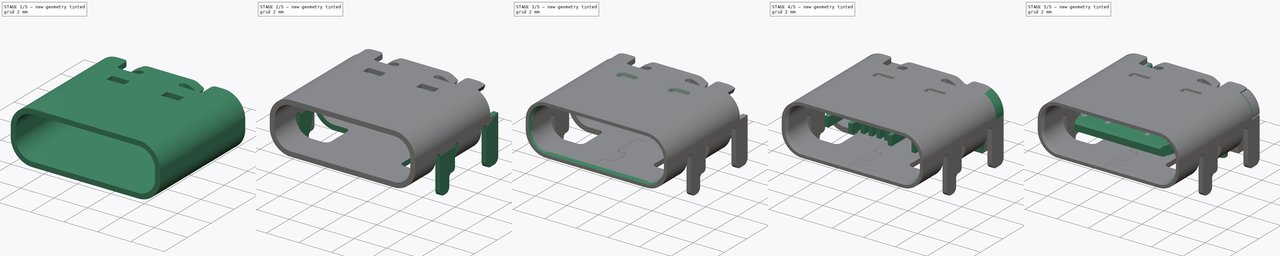
[diagram: build sequence overview — one tinted view per stage of 5, left to right]
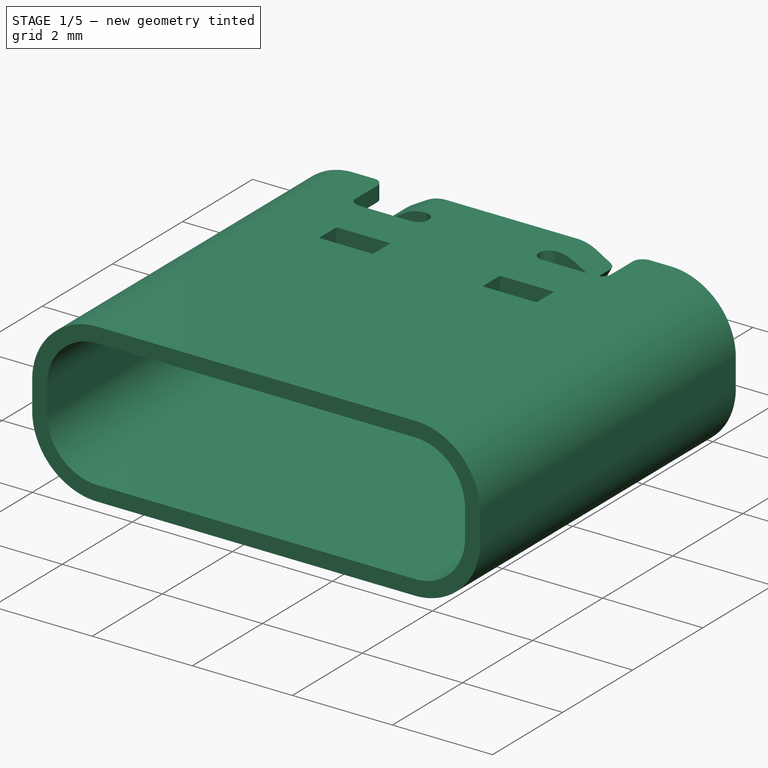
[diagram: stage 1 of 5 — iso view after this stage's code; geometry added in this stage tinted green]
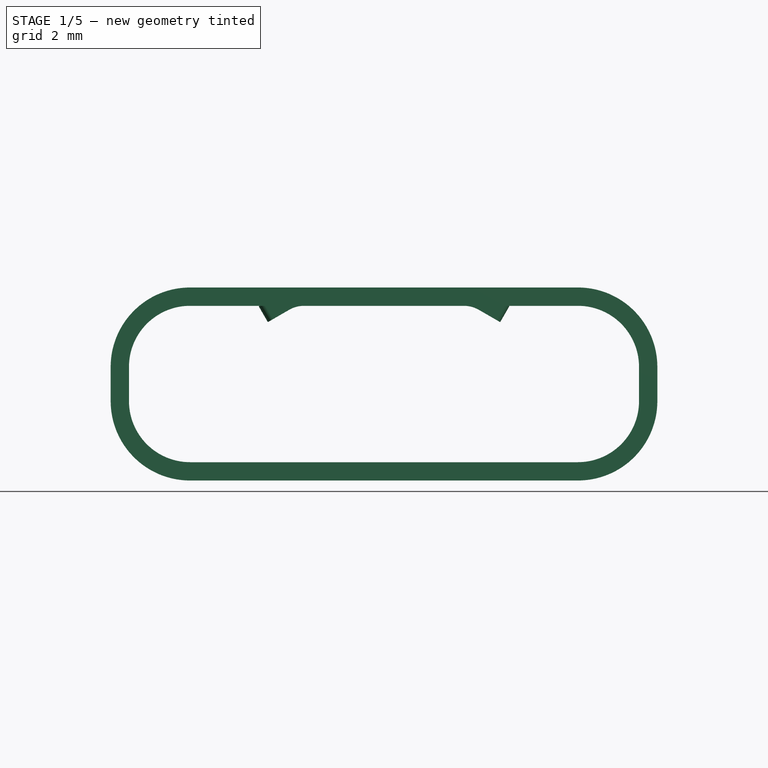
[diagram: stage 1 of 5 — front view after this stage's code; geometry added in this stage tinted green]
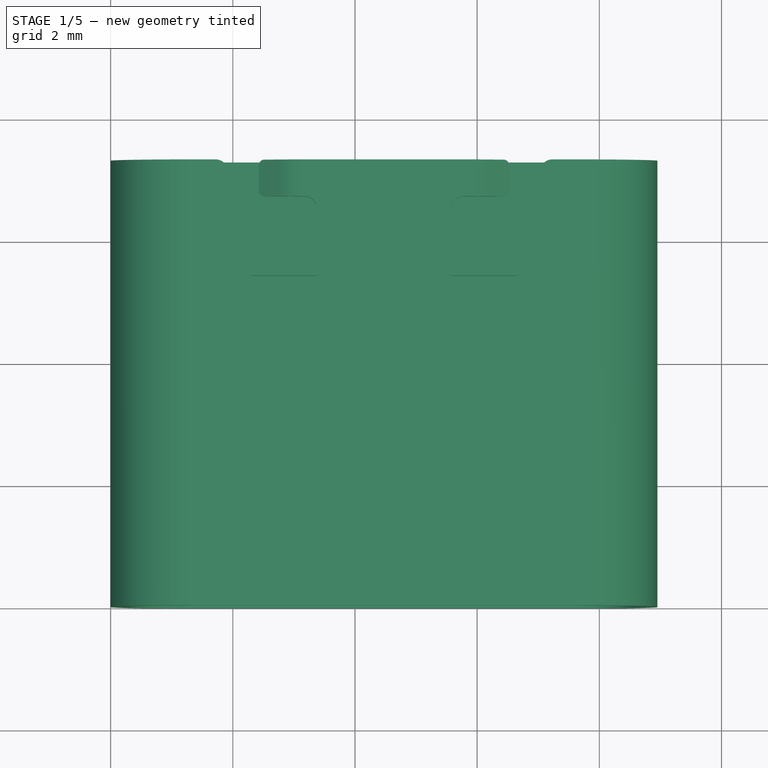
[diagram: stage 1 of 5 — top view after this stage's code; geometry added in this stage tinted green]
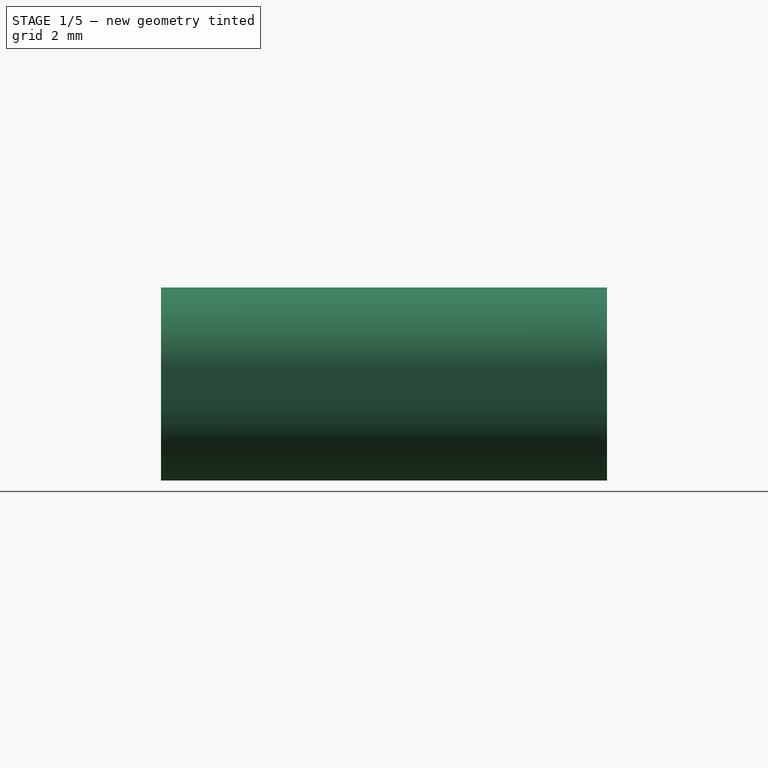
[diagram: stage 1 of 5 — right view after this stage's code; geometry added in this stage tinted green]
FCSTD DOCUMENT  (FreeCAD 0.18R4 (GitTag))
Label: HRO_TYPE-C-31-M-12
License: All rights reserved
LicenseURL: http://en.wikipedia.org/wiki/All_rights_reserved
objects: Sketcher::SketchObject×20, PartDesign::Pad×13, PartDesign::Pocket×6, PartDesign::FeaturePython×4, PartDesign::Fillet×4, PartDesign::Body×4, Image::ImagePlane×1, PartDesign::Chamfer×1, PartDesign::SubtractivePipe×1, App::DocumentObjectGroup×1
note: 73 computed .brp shape members not serialized (recipe doc carries the construction recipe); baked Part::Feature solids carry a one-line shape summary decoded from their .brp

FEATURE [Image::ImagePlane] ImagePlane
  Placement = pos=(6.81,6.13,-3.53) rot=(-0.57735,-0.57735,-0.57735;4.18879rad)
  XSize = 64.2716
  YSize = 45.6843
FEATURE [Sketcher::SketchObject] Sketch
  AttachmentOffset = pos=(0,0,2.86) rot=(0,0,1;0rad)
  MapMode = 5
  Placement = pos=(0,0,2.86) rot=(0,0,1;0rad)
  Support = -> [XY_Plane]
  sketch-geometry (26):
    g0: LineSegment StartX=1.3 StartY=0 StartZ=0 EndX=7.65 EndY=0 EndZ=0
    g1: LineSegment StartX=7.65 StartY=0 StartZ=0 EndX=7.65 EndY=7.3 EndZ=0
    g2: LineSegment StartX=7.65 StartY=7.3 StartZ=0 EndX=7.23 EndY=7.3 EndZ=0
    g3: LineSegment StartX=1.3 StartY=7.3 StartZ=0 EndX=1.3 EndY=0 EndZ=0
    g4: LineSegment StartX=2.3 StartY=5.4 StartZ=0 EndX=3.38 EndY=5.4 EndZ=0
    g5: LineSegment StartX=3.38 StartY=5.4 StartZ=0 EndX=3.38 EndY=4.9 EndZ=0
    g6: LineSegment StartX=3.38 StartY=4.9 StartZ=0 EndX=2.3 EndY=4.9 EndZ=0
    g7: LineSegment StartX=2.3 StartY=4.9 StartZ=0 EndX=2.3 EndY=5.4 EndZ=0
    g8: LineSegment StartX=5.57 StartY=5.4 StartZ=0 EndX=6.65 EndY=5.4 EndZ=0
    g9: LineSegment StartX=6.65 StartY=5.4 StartZ=0 EndX=6.65 EndY=4.9 EndZ=0
    g10: LineSegment StartX=6.65 StartY=4.9 StartZ=0 EndX=5.57 EndY=4.9 EndZ=0
    g11: LineSegment StartX=5.57 StartY=4.9 StartZ=0 EndX=5.57 EndY=5.4 EndZ=0
    g12: LineSegment StartX=1.92 StartY=7.1 StartZ=0 EndX=1.92 EndY=6.5 EndZ=0
    g13: LineSegment StartX=2.12 StartY=6.3 StartZ=0 EndX=3.17 EndY=6.3 EndZ=0
    g14: LineSegment StartX=3.17 StartY=6.7 StartZ=0 EndX=3.17 EndY=7.3 EndZ=0
    g15: LineSegment StartX=1.72 StartY=7.3 StartZ=0 EndX=1.3 EndY=7.3 EndZ=0
    g16: ArcOfCircle CenterX=1.72 CenterY=7.1 CenterZ=0 NormalX=0 NormalY=0 NormalZ=1 AngleXU=0 Radius=0.2 StartAngle=1.1e-15 EndAngle=1.5708
    g17: ArcOfCircle CenterX=2.12 CenterY=6.5 CenterZ=0 NormalX=0 NormalY=0 NormalZ=1 AngleXU=0 Radius=0.2 StartAngle=3.14159 EndAngle=4.71239
    g18: ArcOfCircle CenterX=3.17 CenterY=6.5 CenterZ=0 NormalX=0 NormalY=0 NormalZ=1 AngleXU=0 Radius=0.2 StartAngle=4.71239 EndAngle=7.85398
    g19: LineSegment StartX=7.03 StartY=7.1 StartZ=0 EndX=7.03 EndY=6.5 EndZ=0
    g20: LineSegment StartX=6.83 StartY=6.3 StartZ=0 EndX=5.78 EndY=6.3 EndZ=0
    g21: LineSegment StartX=5.78 StartY=6.7 StartZ=0 EndX=5.78 EndY=7.3 EndZ=0
    g22: LineSegment StartX=5.78 StartY=7.3 StartZ=0 EndX=3.17 EndY=7.3 EndZ=0
    g23: ArcOfCircle CenterX=5.78 CenterY=6.5 CenterZ=0 NormalX=0 NormalY=0 NormalZ=1 AngleXU=0 Radius=0.2 StartAngle=1.5708 EndAngle=4.71239
    g24: ArcOfCircle CenterX=6.83 CenterY=6.5 CenterZ=0 NormalX=0 NormalY=0 NormalZ=1 AngleXU=0 Radius=0.2 StartAngle=4.71239 EndAngle=6.28319
    g25: ArcOfCircle CenterX=7.23 CenterY=7.1 CenterZ=0 NormalX=0 NormalY=0 NormalZ=1 AngleXU=0 Radius=0.2 StartAngle=1.5708 EndAngle=3.14159
  constraints (82):
    c: Coincident(g0,g1)
    c: Coincident(g1,g2)
    c: Coincident(g15,g3)
    c: Coincident(g3,g0)
    c: Horizontal(g0)
    c: Horizontal(g2)
    c: Vertical(g1)
    c: Vertical(g3)
    c: DistanceX(g15,g2) = 6.35
    c: DistanceY(g1,g1) = 7.3
    c: Coincident(g4,g5)
    c: Coincident(g5,g6)
    c: Coincident(g6,g7)
    c: Coincident(g7,g4)
    c: Horizontal(g4)
    c: Horizontal(g6)
    c: Vertical(g5)
    c: Vertical(g7)
    c: DistanceX(g0,g6) = 1
    c: DistanceY(g0,g6) = 4.9
    c: DistanceY(g5,g5) = 0.5
    c: DistanceX(g4,g4) = 1.08
    c: Coincident(g8,g9)
    c: Coincident(g9,g10)
    c: Coincident(g10,g11)
    c: Coincident(g11,g8)
    c: Horizontal(g8)
    c: Horizontal(g10)
    c: Vertical(g9)
    c: Vertical(g11)
    c: Horizontal(g5,g10)
    c: Horizontal(g8,g4)
    c: DistanceX(g9,g0) = 1
    c: Equal(g8,g4)
    c: Vertical(g12)
    c: Horizontal(g13)
    c: Vertical(g14)
    c: Coincident(g22,g14)
    c: Tangent(g2,g15)
    c: Coincident(g16,g15)
    c: Coincident(g16,g12)
    c: Coincident(g17,g12)
    c: Coincident(g17,g13)
    c: Coincident(g18,g14)
    c: Radius(g18) = 0.2
    c: Equal(g18,g17)
    c: Equal(g17,g16)
    c: Horizontal(g12,g16)
    c: Horizontal(g17,g12)
    c: Vertical(g13,g17)
    c: Coincident(g18,g13)
    c: Vertical(g13,g18)
    c: Vertical(g18,g14)
    c: Vertical(g15,g16)
    c: DistanceY(g13,g22) = 1
    c: DistanceX(g13,g13) = 1.05
    c: Vertical(g19)
    c: Horizontal(g20)
    c: Vertical(g21)
    c: Coincident(g22,g21)
    c: Tangent(g2,g22)
    c: Coincident(g23,g20)
    c: Coincident(g23,g21)
    c: Coincident(g24,g20)
    c: Coincident(g24,g19)
    c: Coincident(g25,g19)
    c: Coincident(g25,g2)
    c: Horizontal(g25,g19)
    c: Horizontal(g19,g24)
    c: Vertical(g20,g24)
    c: Vertical(g20,g23)
    c: Vertical(g23,g21)
    c: Equal(g25,g24)
    c: Equal(g24,g23)
    c: Equal(g23,g18)
    c: Vertical(g25,g2)
    c: Equal(g14,g21)
    c: Equal(g2,g15)
    c: Equal(g20,g13)
    c: Horizontal(g0,g-1)
    c: DistanceX(g-1,g0) = 1.3
    c: DistanceX(g15,g15) = 0.42
FEATURE [PartDesign::Pad] Pad
  Length = 0.3
  Length2 = 100
  Profile = -> Sketch
  Type = 0
FEATURE [PartDesign::FeaturePython] Bend001  # WARN: FeaturePython — macro-defined, semantics opaque (R4)
  AutoMiter = true
  BaseFeature = -> Pad
  BendType = 0
  LengthList = [0.4]
  ReliefFactor = 0.7
  UseReliefFactor = false
  angle = -30
  baseObject = -> Pad [Face12,Face14]
  bendAList = [-30]
  extend1 = 0
  extend2 = 0
  gap1 = 0
  gap2 = 0
  invert = false
  kfactor = 0.5
  length = 0.4
  miterangle1 = 0
  miterangle2 = 0
  offset = 0
  radius = 0.5
  reliefType = 0
  reliefd = 1
  reliefw = 0.8
  sketchflip = false
  sketchinvert = false
  unfold = false
FEATURE [PartDesign::Fillet] Fillet
  Base = -> Bend001 [Edge8,Edge2,Edge110,Edge109]
  BaseFeature = -> Bend001
  Radius = 0.1
FEATURE [PartDesign::FeaturePython] Bend002  # WARN: FeaturePython — macro-defined, semantics opaque (R4)
  AutoMiter = true
  BaseFeature = -> Fillet
  BendType = 0
  LengthList = [0.56]
  ReliefFactor = 0.7
  UseReliefFactor = false
  angle = -90
  baseObject = -> Fillet [Face21,Face19]
  bendAList = [-90]
  extend1 = 0
  extend2 = 0
  gap1 = 0
  gap2 = 0
  invert = false
  kfactor = 0.5
  length = 0.56
  miterangle1 = 0
  miterangle2 = 0
  offset = 0
  radius = 1
  reliefType = 0
  reliefd = 1
  reliefw = 0.8
  sketchflip = false
  sketchinvert = false
  unfold = false
FEATURE [PartDesign::FeaturePython] Bend003  # WARN: FeaturePython — macro-defined, semantics opaque (R4)
  AutoMiter = true
  BaseFeature = -> Bend002
  BendType = 0
  LengthList = [3.175]
  ReliefFactor = 0.7
  UseReliefFactor = false
  angle = -90
  baseObject = -> Bend002 [Face3]
  bendAList = [-90]
  extend1 = 0
  extend2 = 0
  gap1 = 0
  gap2 = 0
  invert = false
  kfactor = 0.5
  length = 3.175
  miterangle1 = 0
  miterangle2 = 0
  offset = 0
  radius = 1
  reliefType = 0
  reliefd = 1
  reliefw = 0.8
  sketchflip = false
  sketchinvert = false
  unfold = false
FEATURE [PartDesign::FeaturePython] Bend004  # WARN: FeaturePython — macro-defined, semantics opaque (R4)
  AutoMiter = true
  BaseFeature = -> Bend003
  BendType = 0
  LengthList = [3.175]
  ReliefFactor = 0.7
  UseReliefFactor = false
  angle = -90
  baseObject = -> Bend003 [Face62]
  bendAList = [-90]
  extend1 = 0
  extend2 = 0
  gap1 = 0
  gap2 = 0
  invert = false
  kfactor = 0.5
  length = 3.175
  miterangle1 = 0
  miterangle2 = 0
  offset = 0
  radius = 1
  reliefType = 0
  reliefd = 1
  reliefw = 0.8
  sketchflip = false
  sketchinvert = false
  unfold = false
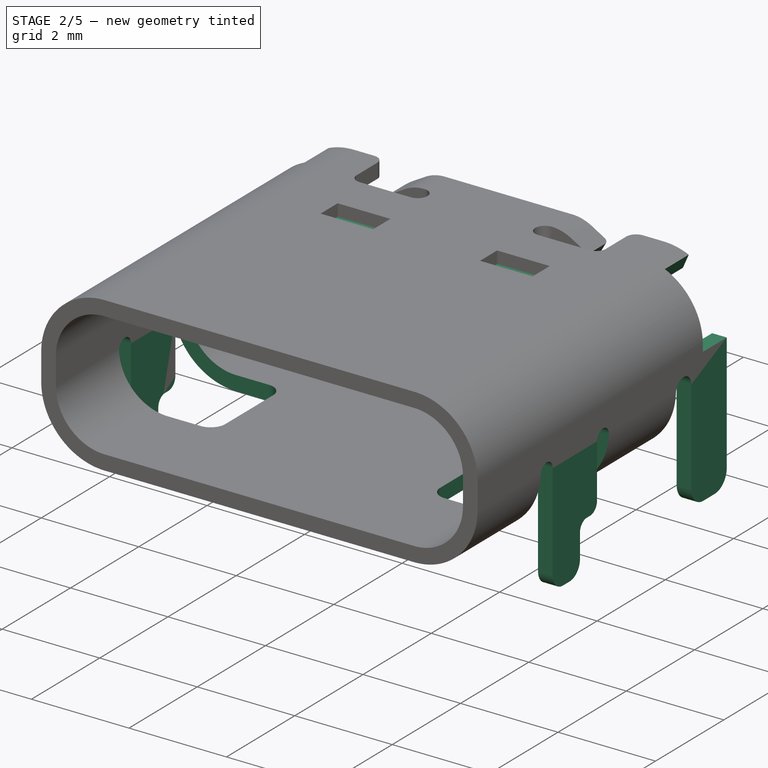
[diagram: stage 2 of 5 — iso view after this stage's code; geometry added in this stage tinted green]
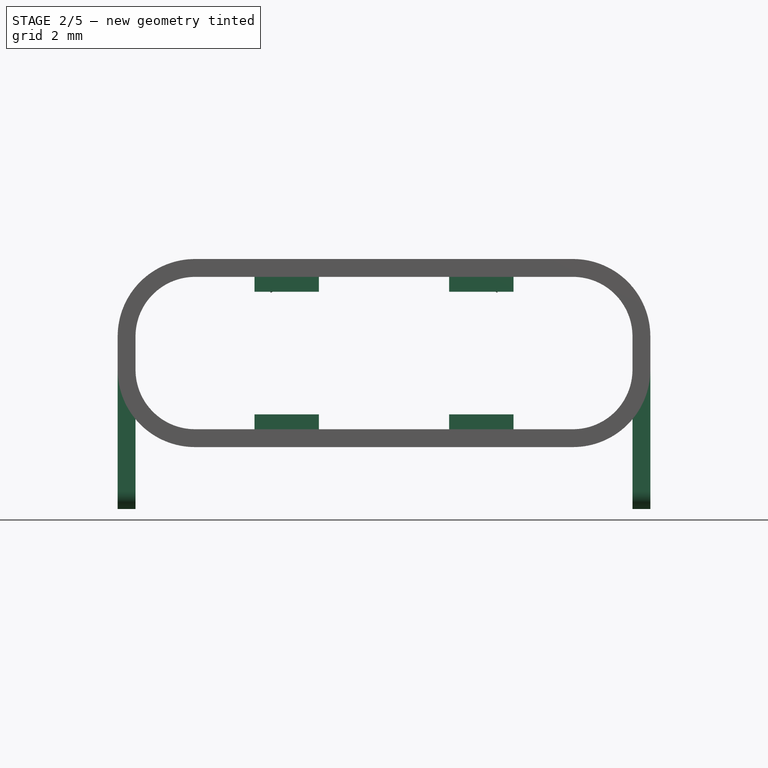
[diagram: stage 2 of 5 — front view after this stage's code; geometry added in this stage tinted green]
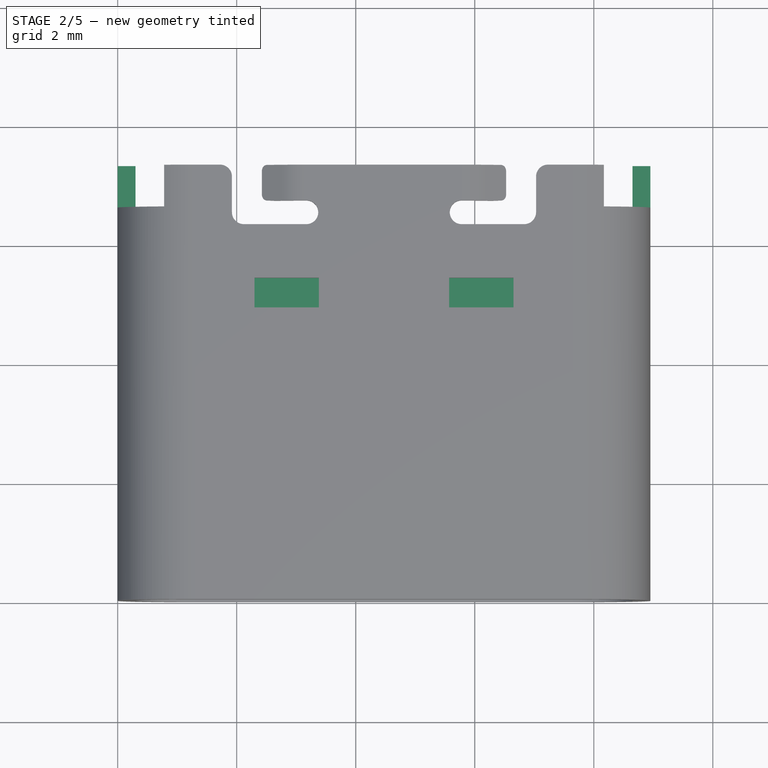
[diagram: stage 2 of 5 — top view after this stage's code; geometry added in this stage tinted green]
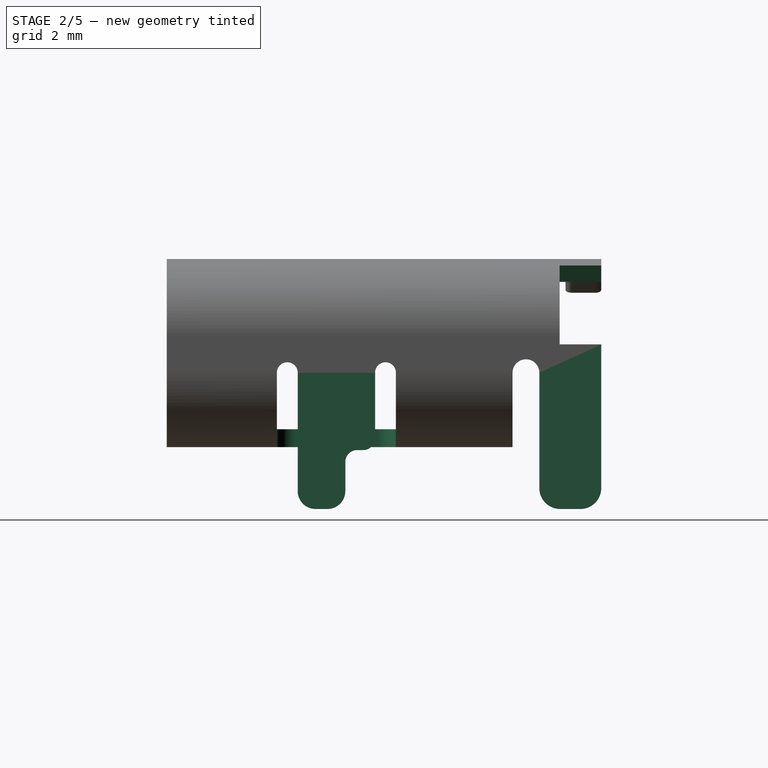
[diagram: stage 2 of 5 — right view after this stage's code; geometry added in this stage tinted green]
FEATURE [Sketcher::SketchObject] Sketch001
  MapMode = 5
  Support = -> [XY_Plane]
  sketch-geometry (25):
    g0: LineSegment StartX=1.97 StartY=1.85 StartZ=0 EndX=0 EndY=1.85 EndZ=0
    g1: LineSegment StartX=0 StartY=1.85 StartZ=0 EndX=0 EndY=3.85 EndZ=0
    g2: LineSegment StartX=0 StartY=3.85 StartZ=0 EndX=1.97 EndY=3.85 EndZ=0
    g3: LineSegment StartX=2.27 StartY=3.55 StartZ=0 EndX=2.27 EndY=2.15 EndZ=0
    g4: ArcOfCircle CenterX=1.97 CenterY=3.55 CenterZ=0 NormalX=0 NormalY=0 NormalZ=1 AngleXU=0 Radius=0.3 StartAngle=0 EndAngle=1.5708
    g5: ArcOfCircle CenterX=1.97 CenterY=2.15 CenterZ=0 NormalX=0 NormalY=0 NormalZ=1 AngleXU=0 Radius=0.3 StartAngle=4.71239 EndAngle=6.28319
    g6: LineSegment [constr] StartX=8.95 StartY=0 StartZ=0 EndX=8.95 EndY=7.3 EndZ=0
    g7: LineSegment StartX=6.98 StartY=3.85 StartZ=0 EndX=8.95 EndY=3.85 EndZ=0
    g8: LineSegment StartX=8.95 StartY=3.85 StartZ=0 EndX=8.95 EndY=1.85 EndZ=0
    g9: LineSegment StartX=8.95 StartY=1.85 StartZ=0 EndX=6.98 EndY=1.85 EndZ=0
    g10: LineSegment StartX=6.68 StartY=2.15 StartZ=0 EndX=6.68 EndY=3.55 EndZ=0
    g11: ArcOfCircle CenterX=6.98 CenterY=2.15 CenterZ=0 NormalX=0 NormalY=0 NormalZ=1 AngleXU=0 Radius=0.3 StartAngle=3.14159 EndAngle=4.71239
    g12: ArcOfCircle CenterX=6.98 CenterY=3.55 CenterZ=0 NormalX=0 NormalY=0 NormalZ=1 AngleXU=0 Radius=0.3 StartAngle=1.5708 EndAngle=3.14159
    g13: LineSegment StartX=0 StartY=5.81 StartZ=0 EndX=8.95 EndY=5.81 EndZ=0
    g14: LineSegment StartX=8.95 StartY=5.81 StartZ=0 EndX=8.95 EndY=7.3 EndZ=0
    g15: LineSegment StartX=8.95 StartY=7.3 StartZ=0 EndX=0 EndY=7.3 EndZ=0
    g16: LineSegment StartX=0 StartY=7.3 StartZ=0 EndX=0 EndY=5.81 EndZ=0
    g17: LineSegment StartX=2.3 StartY=5.4 StartZ=0 EndX=3.38 EndY=5.4 EndZ=0
    g18: LineSegment StartX=3.38 StartY=5.4 StartZ=0 EndX=3.38 EndY=4.9 EndZ=0
    g19: LineSegment StartX=3.38 StartY=4.9 StartZ=0 EndX=2.3 EndY=4.9 EndZ=0
    g20: LineSegment StartX=2.3 StartY=4.9 StartZ=0 EndX=2.3 EndY=5.4 EndZ=0
    g21: LineSegment StartX=5.57 StartY=5.4 StartZ=0 EndX=6.65 EndY=5.4 EndZ=0
    g22: LineSegment StartX=6.65 StartY=5.4 StartZ=0 EndX=6.65 EndY=4.9 EndZ=0
    g23: LineSegment StartX=6.65 StartY=4.9 StartZ=0 EndX=5.57 EndY=4.9 EndZ=0
    g24: LineSegment StartX=5.57 StartY=4.9 StartZ=0 EndX=5.57 EndY=5.4 EndZ=0
  constraints (71):
    c: Coincident(g0,g1)
    c: Coincident(g1,g2)
    c: Horizontal(g0)
    c: Horizontal(g2)
    c: Vertical(g1)
    c: Vertical(g3)
    c: PointOnObject(g1,g-2)
    c: DistanceY(g-1,g0) = 1.85
    c: Tangent(g3,g4) = 1.5708
    c: Tangent(g2,g4) = 1.5708
    c: Tangent(g3,g5) = 1.5708
    c: Tangent(g0,g5) = 1.5708
    c: DistanceX(g1,g3) = 2.27
    c: DistanceY(g1,g1) = 2
    c: Equal(g5,g4)
    c: Radius(g5) = 0.3
    c: PointOnObject(g6,g-1)
    c: Vertical(g6)
    c: DistanceY(g6,g6) = 7.3
    c: DistanceX(g-1,g6) = 8.95
    c: Coincident(g7,g8)
    c: Coincident(g8,g9)
    c: Horizontal(g7)
    c: Horizontal(g9)
    c: Vertical(g8)
    c: Vertical(g10)
    c: Tangent(g10,g11) = 1.5708
    c: Tangent(g9,g11) = 1.5708
    c: Tangent(g10,g12) = 1.5708
    c: Tangent(g7,g12) = 1.5708
    c: Equal(g12,g11)
    c: PointOnObject(g8,g6)
    c: Equal(g11,g5)
    c: Horizontal(g9,g0)
    c: Horizontal(g7,g2)
    c: Equal(g7,g2)
    c: Coincident(g13,g14)
    c: Coincident(g14,g15)
    c: Coincident(g15,g16)
    c: Coincident(g16,g13)
    c: Horizontal(g13)
    c: Horizontal(g15)
    c: Vertical(g14)
    c: Vertical(g16)
    c: PointOnObject(g13,g-2)
    c: Coincident(g14,g6)
    c: DistanceY(g14,g14) = 1.49
    c: Coincident(g17,g18)
    c: Coincident(g18,g19)
    c: Coincident(g19,g20)
    c: Coincident(g20,g17)
    c: Horizontal(g17)
    c: Horizontal(g19)
    c: Vertical(g18)
    c: Vertical(g20)
    c: Coincident(g21,g22)
    c: Coincident(g22,g23)
    c: Coincident(g23,g24)
    c: Coincident(g24,g21)
    c: Horizontal(g21)
    c: Horizontal(g23)
    c: Vertical(g22)
    c: Vertical(g24)
    c: DistanceX(g-1,g19) = 2.3
    c: DistanceY(g-1,g19) = 4.9
    c: DistanceY(g18,g18) = 0.5
    c: DistanceX(g17,g17) = 1.08
    c: Horizontal(g23,g18)
    c: Horizontal(g21,g17)
    c: Equal(g21,g17)
    c: DistanceX(g22,g6) = 2.3
FEATURE [PartDesign::Pocket] Pocket
  BaseFeature = -> Bend004
  Length = 1.25
  Length2 = 100
  Profile = -> Sketch001
  Reversed = true
  Type = 0
FEATURE [Sketcher::SketchObject] Sketch002
  AttachmentOffset = pos=(0,0,8.95) rot=(0,0,1;0rad)
  MapMode = 5
  Placement = pos=(8.95,-2e-15,2e-15) rot=(0.57735,0.57735,0.57735;2.0944rad)
  Support = -> [YZ_Plane]
  sketch-geometry (13):
    g0: LineSegment StartX=1.85 StartY=1.25 StartZ=0 EndX=2.2 EndY=1.25 EndZ=0
    g1: LineSegment StartX=3.5 StartY=1.25 StartZ=0 EndX=3.85 EndY=1.25 EndZ=0
    g2: LineSegment StartX=5.81 StartY=1.25 StartZ=0 EndX=6.26 EndY=1.25 EndZ=0
    g3: LineSegment StartX=6.26 StartY=1.25 StartZ=0 EndX=7.3 EndY=1.25 EndZ=0
    g4: LineSegment StartX=2.19271 StartY=1.3 StartZ=0 EndX=3.50729 EndY=1.3 EndZ=0
    g5: LineSegment StartX=7.3 StartY=1.25 StartZ=0 EndX=7.3 EndY=1.3 EndZ=0
    g6: LineSegment StartX=7.3 StartY=1.3 StartZ=0 EndX=6.25437 EndY=1.3 EndZ=0
    g7: ArcOfCircle CenterX=2.025 CenterY=1.25 CenterZ=0 NormalX=0 NormalY=0 NormalZ=1 AngleXU=0 Radius=0.175 StartAngle=0.289752 EndAngle=3.14159
    g8: ArcOfCircle CenterX=3.675 CenterY=1.25 CenterZ=0 NormalX=0 NormalY=0 NormalZ=1 AngleXU=0 Radius=0.175 StartAngle=0 EndAngle=2.85184
    g9: LineSegment StartX=2.2 StartY=1.25 StartZ=0 EndX=3.5 EndY=1.25 EndZ=0
    g10: ArcOfCircle CenterX=6.035 CenterY=1.25 CenterZ=0 NormalX=0 NormalY=0 NormalZ=1 AngleXU=0 Radius=0.225 StartAngle=0.224093 EndAngle=3.14159
    g11: GeomPoint X=2.85 Y=1.25 Z=0
    g12: GeomPoint X=6.78 Y=1.25 Z=0
  constraints (38):
    c: DistanceY(g-1,g0) = 1.25
    c: Horizontal(g1,g0)
    c: DistanceX(g0,g1) = 2
    c: Horizontal(g2,g1)
    c: Coincident(g3,g2)
    c: Horizontal(g3)
    c: DistanceX(g-1,g3) = 7.3
    c: Horizontal(g4)
    c: Coincident(g5,g3)
    c: Vertical(g5)
    c: Coincident(g6,g5)
    c: Horizontal(g6)
    c: Horizontal(g6,g4)
    c: DistanceY(g5,g5) = 0.05
    c: Coincident(g7,g0)
    c: Coincident(g7,g4)
    c: Radius(g7) = 0.175
    c: Coincident(g8,g1)
    c: Coincident(g8,g4)
    c: Equal(g8,g7)
    c: Coincident(g9,g0)
    c: Coincident(g9,g1)
    c: Horizontal(g0)
    c: DistanceX(g0,g0) = 0.35
    c: Horizontal(g1)
    c: Equal(g1,g0)
    c: Horizontal(g7,g0)
    c: Horizontal(g8,g1)
    c: Coincident(g10,g2)
    c: Coincident(g10,g6)
    c: Horizontal(g10,g2)
    c: Radius(g10) = 0.225
    c: Horizontal(g2)
    c: DistanceX(g2,g2) = 0.45
    c: Symmetric(g7,g8,g11)
    c: Symmetric(g3,g2,g12)
    c: DistanceX(g-1,g11) = 2.85
    c: DistanceX(g-1,g12) = 6.78
FEATURE [PartDesign::Pocket] Pocket001
  BaseFeature = -> Pocket
  Length = 5
  Length2 = 100
  Profile = -> Sketch002
  Type = 1
FEATURE [Sketcher::SketchObject] Sketch003
  AttachmentOffset = pos=(0,0,8.95) rot=(0,0,1;0rad)
  MapMode = 5
  Placement = pos=(8.95,-2e-15,2e-15) rot=(0.57735,0.57735,0.57735;2.0944rad)
  Support = -> [YZ_Plane]
  sketch-geometry (21):
    g0: LineSegment StartX=2.2 StartY=1.25 StartZ=0 EndX=2.2 EndY=-0.74 EndZ=0
    g1: LineSegment StartX=2.5 StartY=-1.04 StartZ=0 EndX=2.7 EndY=-1.04 EndZ=0
    g2: LineSegment StartX=3 StartY=-0.74 StartZ=0 EndX=3 EndY=-0.25 EndZ=0
    g3: LineSegment StartX=3.2 StartY=-0.05 StartZ=0 EndX=3.3 EndY=-0.05 EndZ=0
    g4: LineSegment StartX=3.5 StartY=0.15 StartZ=0 EndX=3.5 EndY=1.25 EndZ=0
    g5: LineSegment StartX=7.3 StartY=1.3 StartZ=0 EndX=7.3 EndY=-0.69 EndZ=0
    g6: LineSegment StartX=6.95 StartY=-1.04 StartZ=0 EndX=6.61 EndY=-1.04 EndZ=0
    g7: LineSegment StartX=6.26 StartY=-0.69 StartZ=0 EndX=6.26 EndY=1.25 EndZ=0
    g8: ArcOfCircle CenterX=2.5 CenterY=-0.74 CenterZ=0 NormalX=0 NormalY=0 NormalZ=1 AngleXU=0 Radius=0.3 StartAngle=3.14159 EndAngle=4.71239
    g9: ArcOfCircle CenterX=2.7 CenterY=-0.74 CenterZ=0 NormalX=0 NormalY=0 NormalZ=1 AngleXU=0 Radius=0.3 StartAngle=4.71239 EndAngle=6.28319
    g10: ArcOfCircle CenterX=3.2 CenterY=-0.25 CenterZ=0 NormalX=0 NormalY=0 NormalZ=1 AngleXU=0 Radius=0.2 StartAngle=1.5708 EndAngle=3.14159
    g11: ArcOfCircle CenterX=3.3 CenterY=0.15 CenterZ=0 NormalX=0 NormalY=0 NormalZ=1 AngleXU=0 Radius=0.2 StartAngle=4.71239 EndAngle=6.28319
    g12: ArcOfCircle CenterX=6.61 CenterY=-0.69 CenterZ=0 NormalX=0 NormalY=0 NormalZ=1 AngleXU=0 Radius=0.35 StartAngle=3.14159 EndAngle=4.71239
    g13: ArcOfCircle CenterX=6.95 CenterY=-0.69 CenterZ=0 NormalX=0 NormalY=0 NormalZ=1 AngleXU=0 Radius=0.35 StartAngle=4.71239 EndAngle=6.28319
    g14: GeomPoint X=2.6 Y=-1.04 Z=0
    g15: GeomPoint X=6.78 Y=-1.04 Z=0
    g16: LineSegment StartX=2.19271 StartY=1.3 StartZ=0 EndX=3.50729 EndY=1.3 EndZ=0
    g17: LineSegment StartX=6.25437 StartY=1.3 StartZ=0 EndX=7.3 EndY=1.3 EndZ=0
    g18: ArcOfCircle CenterX=2.025 CenterY=1.25 CenterZ=0 NormalX=0 NormalY=0 NormalZ=1 AngleXU=0 Radius=0.175 StartAngle=5e-16 EndAngle=0.289752
    g19: ArcOfCircle CenterX=3.675 CenterY=1.25 CenterZ=0 NormalX=0 NormalY=0 NormalZ=1 AngleXU=0 Radius=0.175 StartAngle=2.85184 EndAngle=3.14159
    g20: ArcOfCircle CenterX=6.035 CenterY=1.25 CenterZ=0 NormalX=0 NormalY=0 NormalZ=1 AngleXU=0 Radius=0.225 StartAngle=4e-16 EndAngle=0.224093
  constraints (56):
    c: Vertical(g0)
    c: Horizontal(g1)
    c: Vertical(g2)
    c: Horizontal(g3)
    c: Vertical(g4)
    c: Horizontal(g6)
    c: Vertical(g5)
    c: Vertical(g7)
    c: Horizontal(g4,g7)
    c: Tangent(g0,g8) = -1.5708
    c: Tangent(g1,g8) = -1.5708
    c: Tangent(g1,g9) = -1.5708
    c: Tangent(g2,g9) = -1.5708
    c: Tangent(g2,g10) = 1.5708
    c: Tangent(g3,g10) = 1.5708
    c: Tangent(g3,g11) = -1.5708
    c: Tangent(g4,g11) = -1.5708
    c: Tangent(g7,g12) = 1.5708
    c: Tangent(g6,g12) = 1.5708
    c: Tangent(g6,g13) = 1.5708
    c: Tangent(g5,g13) = 1.5708
    c: Equal(g12,g13)
    c: Equal(g8,g9)
    c: Equal(g10,g11)
    c: DistanceX(g0,g4) = 1.3
    c: DistanceY(g-1,g0) = 1.25
    c: DistanceY(g1,g-1) = 1.04
    c: Horizontal(g1,g6)
    c: DistanceX(g0,g2) = 0.8
    c: Symmetric(g1,g1,g14)
    c: Symmetric(g6,g6,g15)
    c: DistanceX(g14,g15) = 4.18
    c: DistanceX(g-1,g14) = 2.6
    c: Radius(g9) = 0.3
    c: Radius(g12) = 0.35
    c: Radius(g10) = 0.2
    c: DistanceY(g1,g3) = 0.99
    c: Horizontal(g4,g0)
    c: Horizontal(g16)
    c: Horizontal(g17)
    c: Coincident(g5,g17)
    c: Horizontal(g17,g16)
    c: DistanceY(g0,g16) = 0.05
    c: Coincident(g18,g0)
    c: Coincident(g18,g16)
    c: Horizontal(g18,g0)
    c: Coincident(g19,g4)
    c: Coincident(g19,g16)
    c: Horizontal(g19,g4)
    c: Equal(g18,g19)
    c: Radius(g18) = 0.175
    c: Coincident(g20,g7)
    c: Coincident(g20,g17)
    c: Horizontal(g20,g7)
    c: Radius(g20) = 0.225
    c: DistanceX(g-1,g5) = 7.3
FEATURE [PartDesign::Pad] Pad001
  BaseFeature = -> Pocket001
  Length = 0.3
  Length2 = 100
  Profile = -> Sketch003
  Reversed = true
  Type = 0
FEATURE [Sketcher::SketchObject] Sketch004
  MapMode = 5
  Placement = pos=(0,0,0) rot=(0.57735,0.57735,0.57735;2.0944rad)
  Support = -> [YZ_Plane]
  sketch-geometry (21):
    g0: LineSegment StartX=2.2 StartY=1.25 StartZ=0 EndX=2.2 EndY=-0.74 EndZ=0
    g1: LineSegment StartX=2.5 StartY=-1.04 StartZ=0 EndX=2.7 EndY=-1.04 EndZ=0
    g2: LineSegment StartX=3 StartY=-0.74 StartZ=0 EndX=3 EndY=-0.25 EndZ=0
    g3: LineSegment StartX=3.2 StartY=-0.05 StartZ=0 EndX=3.3 EndY=-0.05 EndZ=0
    g4: LineSegment StartX=3.5 StartY=0.15 StartZ=0 EndX=3.5 EndY=1.25 EndZ=0
    g5: LineSegment StartX=7.3 StartY=1.3 StartZ=0 EndX=7.3 EndY=-0.69 EndZ=0
    g6: LineSegment StartX=6.95 StartY=-1.04 StartZ=0 EndX=6.61 EndY=-1.04 EndZ=0
    g7: LineSegment StartX=6.26 StartY=-0.69 StartZ=0 EndX=6.26 EndY=1.25 EndZ=0
    g8: ArcOfCircle CenterX=2.5 CenterY=-0.74 CenterZ=0 NormalX=0 NormalY=0 NormalZ=1 AngleXU=0 Radius=0.3 StartAngle=3.14159 EndAngle=4.71239
    g9: ArcOfCircle CenterX=2.7 CenterY=-0.74 CenterZ=0 NormalX=0 NormalY=0 NormalZ=1 AngleXU=0 Radius=0.3 StartAngle=4.71239 EndAngle=6.28319
    g10: ArcOfCircle CenterX=3.2 CenterY=-0.25 CenterZ=0 NormalX=0 NormalY=0 NormalZ=1 AngleXU=0 Radius=0.2 StartAngle=1.5708 EndAngle=3.14159
    g11: ArcOfCircle CenterX=3.3 CenterY=0.15 CenterZ=0 NormalX=0 NormalY=0 NormalZ=1 AngleXU=0 Radius=0.2 StartAngle=4.71239 EndAngle=6.28319
    g12: ArcOfCircle CenterX=6.61 CenterY=-0.69 CenterZ=0 NormalX=0 NormalY=0 NormalZ=1 AngleXU=0 Radius=0.35 StartAngle=3.14159 EndAngle=4.71239
    g13: ArcOfCircle CenterX=6.95 CenterY=-0.69 CenterZ=0 NormalX=0 NormalY=0 NormalZ=1 AngleXU=0 Radius=0.35 StartAngle=4.71239 EndAngle=6.28319
    g14: GeomPoint X=2.6 Y=-1.04 Z=0
    g15: GeomPoint X=6.78 Y=-1.04 Z=0
    g16: LineSegment StartX=2.19271 StartY=1.3 StartZ=0 EndX=3.50729 EndY=1.3 EndZ=0
    g17: LineSegment StartX=6.25437 StartY=1.3 StartZ=0 EndX=7.3 EndY=1.3 EndZ=0
    g18: ArcOfCircle CenterX=2.025 CenterY=1.25 CenterZ=0 NormalX=0 NormalY=0 NormalZ=1 AngleXU=0 Radius=0.175 StartAngle=5e-16 EndAngle=0.289752
    g19: ArcOfCircle CenterX=3.675 CenterY=1.25 CenterZ=0 NormalX=0 NormalY=0 NormalZ=1 AngleXU=0 Radius=0.175 StartAngle=2.85184 EndAngle=3.14159
    g20: ArcOfCircle CenterX=6.035 CenterY=1.25 CenterZ=0 NormalX=0 NormalY=0 NormalZ=1 AngleXU=0 Radius=0.225 StartAngle=4e-16 EndAngle=0.224093
  constraints (56):
    c: Vertical(g0)
    c: Horizontal(g1)
    c: Vertical(g2)
    c: Horizontal(g3)
    c: Vertical(g4)
    c: Horizontal(g6)
    c: Vertical(g5)
    c: Vertical(g7)
    c: Horizontal(g4,g7)
    c: Tangent(g0,g8) = -1.5708
    c: Tangent(g1,g8) = -1.5708
    c: Tangent(g1,g9) = -1.5708
    c: Tangent(g2,g9) = -1.5708
    c: Tangent(g2,g10) = 1.5708
    c: Tangent(g3,g10) = 1.5708
    c: Tangent(g3,g11) = -1.5708
    c: Tangent(g4,g11) = -1.5708
    c: Tangent(g7,g12) = 1.5708
    c: Tangent(g6,g12) = 1.5708
    c: Tangent(g6,g13) = 1.5708
    c: Tangent(g5,g13) = 1.5708
    c: Equal(g12,g13)
    c: Equal(g8,g9)
    c: Equal(g10,g11)
    c: DistanceX(g0,g4) = 1.3
    c: DistanceY(g-1,g0) = 1.25
    c: DistanceY(g1,g-1) = 1.04
    c: Horizontal(g1,g6)
    c: DistanceX(g0,g2) = 0.8
    c: Symmetric(g1,g1,g14)
    c: Symmetric(g6,g6,g15)
    c: DistanceX(g14,g15) = 4.18
    c: DistanceX(g-1,g14) = 2.6
    c: Radius(g9) = 0.3
    c: Radius(g12) = 0.35
    c: Radius(g10) = 0.2
    c: DistanceY(g1,g3) = 0.99
    c: Horizontal(g4,g0)
    c: Horizontal(g16)
    c: Horizontal(g17)
    c: Coincident(g5,g17)
    c: Horizontal(g17,g16)
    c: DistanceY(g0,g16) = 0.05
    c: Coincident(g18,g0)
    c: Coincident(g18,g16)
    c: Horizontal(g18,g0)
    c: Coincident(g19,g4)
    c: Coincident(g19,g16)
    c: Horizontal(g19,g4)
    c: Equal(g18,g19)
    c: Radius(g18) = 0.175
    c: Coincident(g20,g7)
    c: Coincident(g20,g17)
    c: Horizontal(g20,g7)
    c: Radius(g20) = 0.225
    c: DistanceX(g-1,g5) = 7.3
FEATURE [PartDesign::Pad] Pad002
  BaseFeature = -> Pad001
  Length = 0.3
  Length2 = 100
  Profile = -> Sketch004
  Type = 0
FEATURE [Sketcher::SketchObject] Sketch005
  AttachmentOffset = pos=(0,0,-7.3) rot=(0,0,1;0rad)
  MapMode = 5
  Placement = pos=(0,7.3,1.6e-15) rot=(1,0,0;1.5708rad)
  Support = -> [XZ_Plane]
  sketch-geometry (16):
    g0: LineSegment StartX=0 StartY=1.725 StartZ=0 EndX=0.9 EndY=1.725 EndZ=0
    g1: LineSegment StartX=0.9 StartY=1.725 StartZ=0 EndX=0.9 EndY=2.77652 EndZ=0
    g2: LineSegment StartX=0.78 StartY=3.05147 StartZ=0 EndX=0 EndY=3.05147 EndZ=0
    g3: LineSegment StartX=0 StartY=3.05147 StartZ=0 EndX=0 EndY=1.725 EndZ=0
    g4: GeomPoint X=0 Y=1.86 Z=0
    g5: ArcOfCircle [constr] CenterX=1.3 CenterY=1.86 CenterZ=0 NormalX=0 NormalY=0 NormalZ=1 AngleXU=0 Radius=1.3 StartAngle=1.5708 EndAngle=3.14159
    g6: ArcOfCircle [constr] CenterX=1.3 CenterY=1.86 CenterZ=0 NormalX=0 NormalY=0 NormalZ=1 AngleXU=0 Radius=1 StartAngle=1.5708 EndAngle=3.14159
    g7: LineSegment StartX=0.78 StartY=3.05147 StartZ=0 EndX=0.9 EndY=2.77652 EndZ=0
    g8: GeomPoint X=8.95 Y=1.86 Z=0
    g9: ArcOfCircle [constr] CenterX=7.65 CenterY=1.86 CenterZ=0 NormalX=0 NormalY=0 NormalZ=1 AngleXU=0 Radius=1.3 StartAngle=0 EndAngle=1.5708
    g10: ArcOfCircle [constr] CenterX=7.65 CenterY=1.86 CenterZ=0 NormalX=0 NormalY=0 NormalZ=1 AngleXU=0 Radius=1 StartAngle=0 EndAngle=1.5708
    g11: LineSegment StartX=8.95 StartY=1.725 StartZ=0 EndX=8.05 EndY=1.725 EndZ=0
    g12: LineSegment StartX=8.05 StartY=1.725 StartZ=0 EndX=8.05 EndY=2.77652 EndZ=0
    g13: LineSegment StartX=8.05 StartY=2.77652 StartZ=0 EndX=8.17 EndY=3.05147 EndZ=0
    g14: LineSegment StartX=8.17 StartY=3.05147 StartZ=0 EndX=8.95 EndY=3.05147 EndZ=0
    g15: LineSegment StartX=8.95 StartY=3.05147 StartZ=0 EndX=8.95 EndY=1.725 EndZ=0
  constraints (50):
    c: PointOnObject(g0,g-2)
    c: Horizontal(g0)
    c: Coincident(g0,g1)
    c: Vertical(g1)
    c: Horizontal(g2)
    c: Coincident(g2,g3)
    c: Coincident(g3,g0)
    c: Vertical(g3)
    c: DistanceX(g0,g0) = 0.9
    c: PointOnObject(g4,g-2)
    c: DistanceY(g-1,g4) = 1.86
    c: Horizontal(g5,g4)
    c: Coincident(g5,g6)
    c: Horizontal(g6,g5)
    c: Vertical(g6,g5)
    c: Vertical(g5,g5)
    c: Radius(g6) = 1
    c: DistanceY(g6,g5) = 0.3
    c: PointOnObject(g1,g6)
    c: PointOnObject(g7,g5)
    c: Coincident(g7,g1)
    c: Perpendicular(g5,g7)
    c: Coincident(g5,g4)
    c: Coincident(g2,g7)
    c: DistanceY(g-1,g0) = 1.725
    c: Horizontal(g8,g4)
    c: DistanceX(g-1,g8) = 8.95
    c: Coincident(g9,g8)
    c: Vertical(g10,g9)
    c: Horizontal(g9,g5)
    c: Horizontal(g10,g6)
    c: Horizontal(g9,g8)
    c: Horizontal(g10,g8)
    c: Equal(g10,g6)
    c: Equal(g9,g5)
    c: Horizontal(g10,g8)
    c: PointOnObject(g12,g10)
    c: Vertical(g12)
    c: Coincident(g12,g13)
    c: Coincident(g13,g14)
    c: Horizontal(g14)
    c: Perpendicular(g13,g9) = 1.5708
    c: Coincident(g11,g12)
    c: Horizontal(g11)
    c: Coincident(g14,g15)
    c: Coincident(g15,g11)
    c: Vertical(g11,g8)
    c: Vertical(g15)
    c: Horizontal(g11,g0)
    c: Equal(g11,g0)
FEATURE [PartDesign::Pocket] Pocket002
  BaseFeature = -> Pad002
  Length = 0.7
  Length2 = 100
  Profile = -> Sketch005
  Refine = true
  Reversed = true
  Type = 0
FEATURE [Sketcher::SketchObject] Sketch010
  AttachmentOffset = pos=(0,0,-5.4) rot=(0,0,1;0rad)
  MapMode = 5
  Placement = pos=(0,5.4,1.2e-15) rot=(1,0,0;1.5708rad)
  Support = -> [XZ_Plane]
  sketch-geometry (17):
    g0: LineSegment StartX=2.3 StartY=2.91 StartZ=0 EndX=3.38 EndY=2.91 EndZ=0
    g1: LineSegment StartX=3.38 StartY=2.91 StartZ=0 EndX=3.38 EndY=2.61 EndZ=0
    g2: LineSegment StartX=3.38 StartY=2.61 StartZ=0 EndX=2.3 EndY=2.61 EndZ=0
    g3: LineSegment StartX=2.3 StartY=2.61 StartZ=0 EndX=2.3 EndY=2.91 EndZ=0
    g4: LineSegment StartX=5.57 StartY=2.91 StartZ=0 EndX=6.65 EndY=2.91 EndZ=0
    g5: LineSegment StartX=6.65 StartY=2.91 StartZ=0 EndX=6.65 EndY=2.61 EndZ=0
    g6: LineSegment StartX=6.65 StartY=2.61 StartZ=0 EndX=5.57 EndY=2.61 EndZ=0
    g7: LineSegment StartX=5.57 StartY=2.61 StartZ=0 EndX=5.57 EndY=2.91 EndZ=0
    g8: LineSegment StartX=2.3 StartY=0.55 StartZ=0 EndX=3.38 EndY=0.55 EndZ=0
    g9: LineSegment StartX=3.38 StartY=0.55 StartZ=0 EndX=3.38 EndY=0.25 EndZ=0
    g10: LineSegment StartX=3.38 StartY=0.25 StartZ=0 EndX=2.3 EndY=0.25 EndZ=0
    g11: LineSegment StartX=2.3 StartY=0.25 StartZ=0 EndX=2.3 EndY=0.55 EndZ=0
    g12: LineSegment StartX=5.57 StartY=0.55 StartZ=0 EndX=6.65 EndY=0.55 EndZ=0
    g13: LineSegment StartX=6.65 StartY=0.55 StartZ=0 EndX=6.65 EndY=0.25 EndZ=0
    g14: LineSegment StartX=6.65 StartY=0.25 StartZ=0 EndX=5.57 EndY=0.25 EndZ=0
    g15: LineSegment StartX=5.57 StartY=0.25 StartZ=0 EndX=5.57 EndY=0.55 EndZ=0
    g16: GeomPoint X=8.95 Y=0 Z=0
  constraints (50):
    c: Coincident(g0,g1)
    c: Coincident(g1,g2)
    c: Coincident(g2,g3)
    c: Coincident(g3,g0)
    c: Horizontal(g0)
    c: Horizontal(g2)
    c: Vertical(g1)
    c: Vertical(g3)
    c: Coincident(g4,g5)
    c: Coincident(g5,g6)
    c: Coincident(g6,g7)
    c: Coincident(g7,g4)
    c: Horizontal(g4)
    c: Horizontal(g6)
    c: Vertical(g5)
    c: Vertical(g7)
    c: Coincident(g8,g9)
    c: Coincident(g9,g10)
    c: Coincident(g10,g11)
    c: Coincident(g11,g8)
    c: Horizontal(g8)
    c: Horizontal(g10)
    c: Vertical(g9)
    c: Vertical(g11)
    c: Coincident(g12,g13)
    c: Coincident(g13,g14)
    c: Coincident(g14,g15)
    c: Coincident(g15,g12)
    c: Horizontal(g12)
    c: Horizontal(g14)
    c: Vertical(g13)
    c: Vertical(g15)
    c: Vertical(g2,g8)
    c: Vertical(g1,g8)
    c: Horizontal(g6,g1)
    c: Horizontal(g12,g8)
    c: Vertical(g12,g6)
    c: Vertical(g12,g5)
    c: Horizontal(g14,g9)
    c: Horizontal(g0,g4)
    c: Equal(g3,g11)
    c: DistanceY(g-1,g10) = 0.25
    c: DistanceX(g8,g8) = 1.08
    c: Equal(g0,g4)
    c: DistanceX(g-1,g10) = 2.3
    c: PointOnObject(g16,g-1)
    c: DistanceX(g-1,g16) = 8.95
    c: DistanceX(g13,g16) = 2.3
    c: DistanceY(g9,g9) = 0.3
    c: DistanceY(g-1,g0) = 2.91
FEATURE [PartDesign::Pad] Pad005
  BaseFeature = -> Pocket002
  Length = 0.5
  Length2 = 100
  Profile = -> Sketch010
  Type = 0
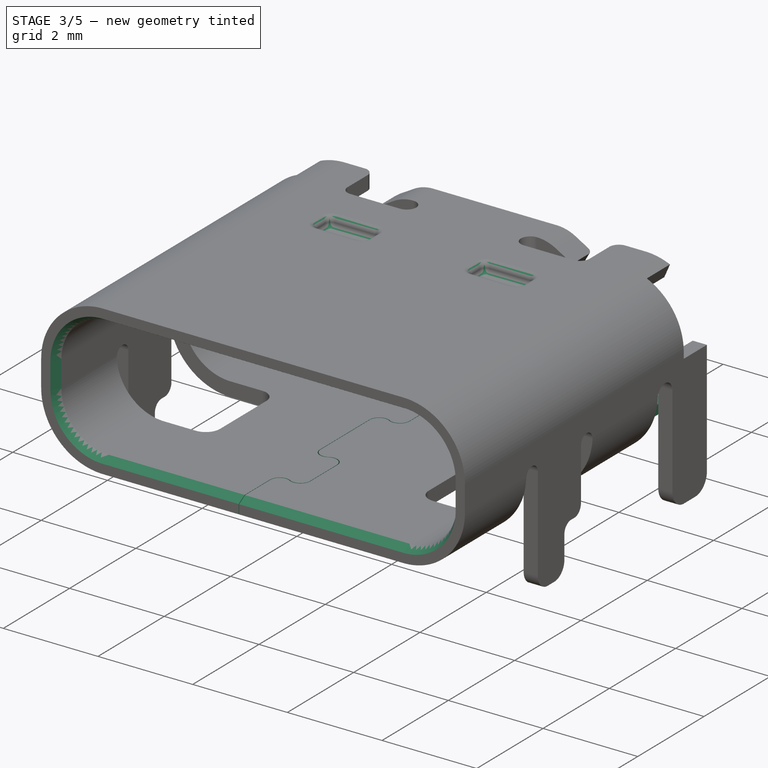
[diagram: stage 3 of 5 — iso view after this stage's code; geometry added in this stage tinted green]
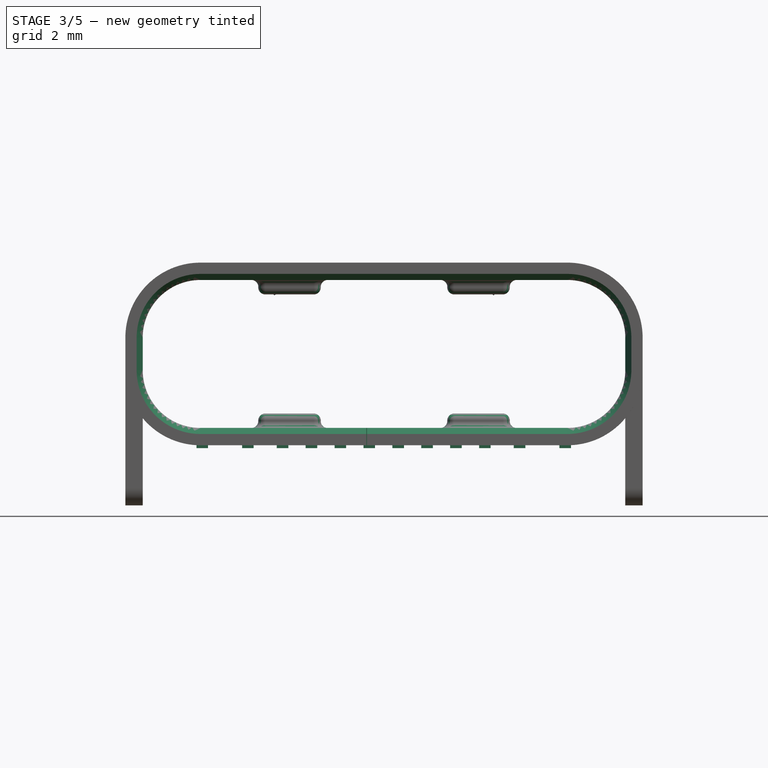
[diagram: stage 3 of 5 — front view after this stage's code; geometry added in this stage tinted green]
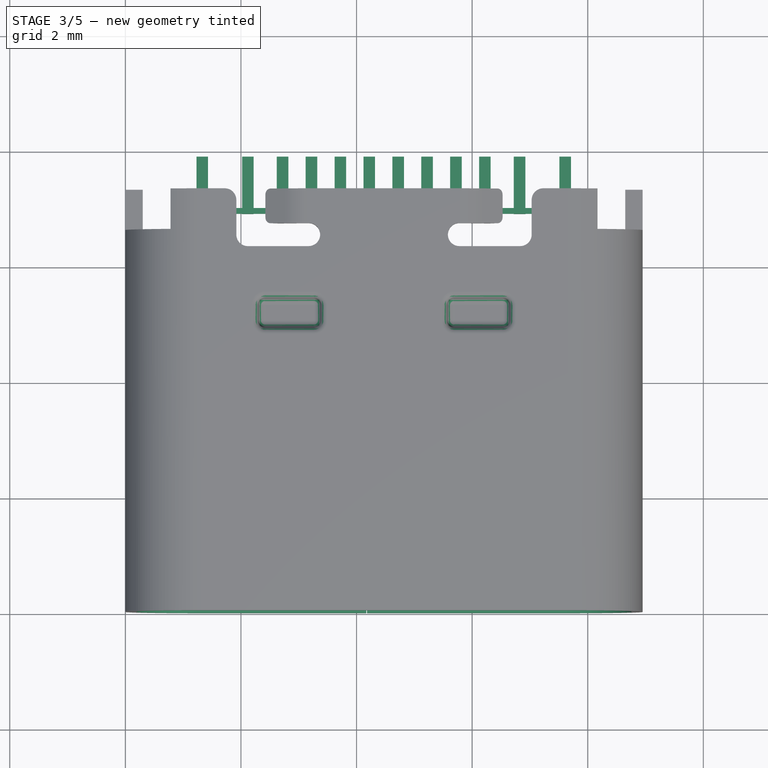
[diagram: stage 3 of 5 — top view after this stage's code; geometry added in this stage tinted green]
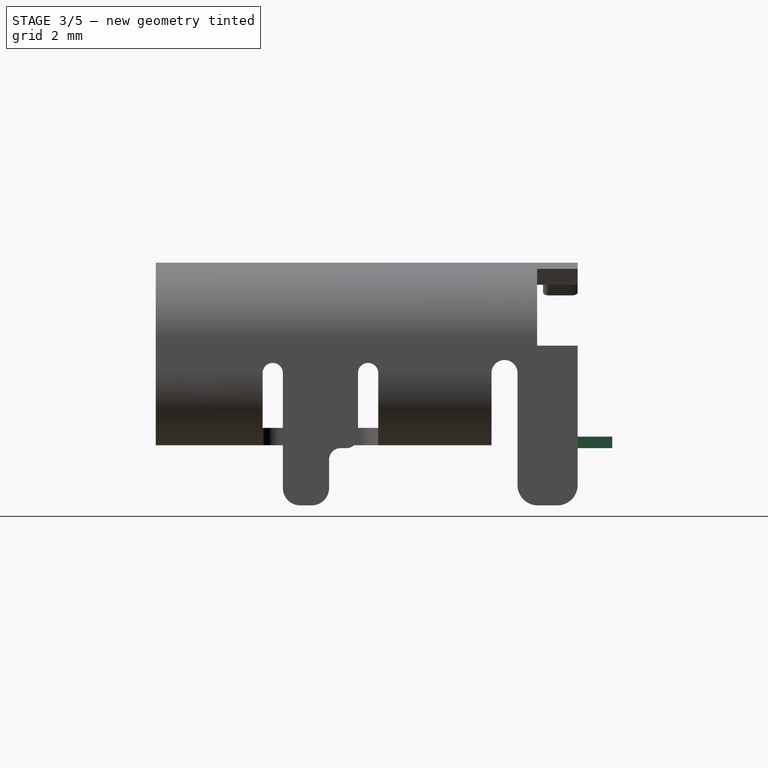
[diagram: stage 3 of 5 — right view after this stage's code; geometry added in this stage tinted green]
FEATURE [PartDesign::Fillet] Fillet001
  Base = -> Pad005 [Edge191,Edge192,Edge193,Edge194,Edge359,Edge352,Edge355,Edge357,Edge351,Edge190,Edge187,Edge188,Edge189,Edge349,Edge347,Edge344,Edge345,Edge348,Edge346,Edge350,Edge356,Edge353,Edge354,Edge358,Edge391,Edge390,Edge389,Edge388,Edge393,Edge394,Edge387,Edge392,Edge379,Edge380,Edge386,Edge385,Edge384,Edge381,Edge382,Edge383,+56 more]
  BaseFeature = -> Pad005
  Radius = 0.12
FEATURE [Sketcher::SketchObject] Sketch011
  MapMode = 1
  Placement = pos=(1.3,0,0.3) rot=(0.57735,0.57735,0.57735;2.0944rad)
  Support = -> [Fillet001]
  sketch-geometry (3):
    g0: LineSegment StartX=0 StartY=-0.105 StartZ=0 EndX=0.181865 EndY=0 EndZ=0
    g1: LineSegment StartX=0.181865 StartY=0 StartZ=0 EndX=0 EndY=0 EndZ=0
    g2: LineSegment StartX=0 StartY=0 StartZ=0 EndX=0 EndY=-0.105 EndZ=0
  constraints (8):
    c: PointOnObject(g0,g-2)
    c: Coincident(g0,g1)
    c: Horizontal(g1)
    c: Coincident(g1,g2)
    c: DistanceY(g2,g2) = 0.105
    c: Coincident(g0,g2)
    c: Angle(g0) = 0.523599
    c: Coincident(g1,g-1)
FEATURE [PartDesign::SubtractivePipe] SubtractivePipe
  AuxilleryCurvelinear = true
  AuxillerySpineTangent = false
  BaseFeature = -> Fillet001
  Binormal = (0,0,0)
  Mode = 0
  Profile = -> Sketch011
  Refine = true
  Spine = -> Fillet001 [Edge59,Edge66,Edge65,Edge64,Edge63,Edge62,Edge61,Edge60]
  SpineTangent = false
  Transformation = 0
  Transition = 0
FEATURE [PartDesign::Body] Body001  label="Mold"
  Group = -> [Sketch006,Pad003,Sketch008,Pad004,Sketch009,Pocket003,Chamfer,Sketch012,Pad006,Sketch013,Pocket004,Sketch014,Pad007,Fillet002]
  Origin = -> Origin001
  Tip = -> Fillet002
FEATURE [Sketcher::SketchObject] Sketch015
  AttachmentOffset = pos=(0,0,0.15) rot=(0,0,1;0rad)
  MapMode = 5
  Placement = pos=(0,0,0.15) rot=(0,0,1;0rad)
  Support = -> [XY_Plane002]
  sketch-geometry (9):
    g0: GeomPoint X=8.94 Y=0 Z=0
    g1: GeomPoint X=8.94 Y=7.3 Z=0
    g2: GeomPoint X=0 Y=7.3 Z=0
    g3: GeomPoint X=4.47 Y=7.3 Z=0
    g4: LineSegment StartX=1.02 StartY=7.01 StartZ=0 EndX=7.92 EndY=7.01 EndZ=0
    g5: LineSegment StartX=7.92 StartY=7.01 StartZ=0 EndX=7.92 EndY=6.91 EndZ=0
    g6: LineSegment StartX=7.92 StartY=6.91 StartZ=0 EndX=1.02 EndY=6.91 EndZ=0
    g7: LineSegment StartX=1.02 StartY=6.91 StartZ=0 EndX=1.02 EndY=7.01 EndZ=0
    g8: GeomPoint X=4.47 Y=6.91 Z=0
  constraints (20):
    c: PointOnObject(g0,g-1)
    c: DistanceX(g-1,g0) = 8.94
    c: DistanceY(g0,g1) = 7.3
    c: Vertical(g1,g0)
    c: PointOnObject(g2,g-2)
    c: Horizontal(g2,g1)
    c: Symmetric(g1,g2,g3)
    c: Coincident(g4,g5)
    c: Coincident(g5,g6)
    c: Coincident(g6,g7)
    c: Coincident(g7,g4)
    c: Horizontal(g4)
    c: Horizontal(g6)
    c: Vertical(g5)
    c: Vertical(g7)
    c: DistanceY(g4,g2) = 0.29
    c: DistanceY(g6,g2) = 0.39
    c: DistanceX(g6,g6) = 6.9
    c: Symmetric(g6,g5,g8)
    c: Vertical(g8,g3)
FEATURE [PartDesign::Pad] Pad008
  Length = 0.1
  Length2 = 100
  Profile = -> Sketch015
  Type = 0
FEATURE [Sketcher::SketchObject] Sketch017
  AttachmentOffset = pos=(0,0,-0.05) rot=(0,0,1;0rad)
  MapMode = 5
  Placement = pos=(0,0,-0.05) rot=(0,0,1;0rad)
  Support = -> [XY_Plane002]
  sketch-geometry (64):
    g0: GeomPoint X=8.94 Y=0 Z=0
    g1: GeomPoint X=8.94 Y=7.3 Z=0
    g2: GeomPoint X=0 Y=7.3 Z=0
    g3: GeomPoint X=4.47 Y=7.3 Z=0
    g4: LineSegment StartX=1.23 StartY=7.9 StartZ=0 EndX=1.43 EndY=7.9 EndZ=0
    g5: LineSegment StartX=1.43 StartY=6.91 StartZ=0 EndX=1.23 EndY=6.91 EndZ=0
    g6: LineSegment StartX=1.23 StartY=6.91 StartZ=0 EndX=1.23 EndY=7.9 EndZ=0
    g7: LineSegment StartX=1.43 StartY=7.9 StartZ=0 EndX=1.43 EndY=6.91 EndZ=0
    g8: LineSegment StartX=2.02 StartY=6.91 StartZ=0 EndX=2.02 EndY=7.9 EndZ=0
    g9: LineSegment StartX=2.02 StartY=7.9 StartZ=0 EndX=2.22 EndY=7.9 EndZ=0
    g10: LineSegment StartX=2.22 StartY=7.9 StartZ=0 EndX=2.22 EndY=6.91 EndZ=0
    g11: LineSegment StartX=2.22 StartY=6.91 StartZ=0 EndX=2.02 EndY=6.91 EndZ=0
    g12: LineSegment StartX=2.62 StartY=7.9 StartZ=0 EndX=2.82 EndY=7.9 EndZ=0
    g13: LineSegment StartX=2.82 StartY=7.9 StartZ=0 EndX=2.82 EndY=6.91 EndZ=0
    g14: LineSegment StartX=2.82 StartY=6.91 StartZ=0 EndX=2.62 EndY=6.91 EndZ=0
    g15: LineSegment StartX=2.62 StartY=6.91 StartZ=0 EndX=2.62 EndY=7.9 EndZ=0
    g16: LineSegment StartX=3.12 StartY=7.9 StartZ=0 EndX=3.32 EndY=7.9 EndZ=0
    g17: LineSegment StartX=3.32 StartY=7.9 StartZ=0 EndX=3.32 EndY=6.91 EndZ=0
    g18: LineSegment StartX=3.32 StartY=6.91 StartZ=0 EndX=3.12 EndY=6.91 EndZ=0
    g19: LineSegment StartX=3.12 StartY=6.91 StartZ=0 EndX=3.12 EndY=7.9 EndZ=0
    g20: LineSegment StartX=3.62 StartY=7.9 StartZ=0 EndX=3.82 EndY=7.9 EndZ=0
    g21: LineSegment StartX=3.82 StartY=7.9 StartZ=0 EndX=3.82 EndY=6.91 EndZ=0
    g22: LineSegment StartX=3.82 StartY=6.91 StartZ=0 EndX=3.62 EndY=6.91 EndZ=0
    g23: LineSegment StartX=3.62 StartY=6.91 StartZ=0 EndX=3.62 EndY=7.9 EndZ=0
    g24: LineSegment StartX=4.12 StartY=7.9 StartZ=0 EndX=4.32 EndY=7.9 EndZ=0
    g25: LineSegment StartX=4.32 StartY=7.9 StartZ=0 EndX=4.32 EndY=6.91 EndZ=0
    g26: LineSegment StartX=4.32 StartY=6.91 StartZ=0 EndX=4.12 EndY=6.91 EndZ=0
    g27: LineSegment StartX=4.12 StartY=6.91 StartZ=0 EndX=4.12 EndY=7.9 EndZ=0
    g28: LineSegment StartX=4.62 StartY=7.9 StartZ=0 EndX=4.82 EndY=7.9 EndZ=0
    g29: LineSegment StartX=4.82 StartY=7.9 StartZ=0 EndX=4.82 EndY=6.91 EndZ=0
    g30: LineSegment StartX=4.82 StartY=6.91 StartZ=0 EndX=4.62 EndY=6.91 EndZ=0
    g31: LineSegment StartX=4.62 StartY=6.91 StartZ=0 EndX=4.62 EndY=7.9 EndZ=0
    g32: LineSegment StartX=5.12 StartY=7.9 StartZ=0 EndX=5.32 EndY=7.9 EndZ=0
    g33: LineSegment StartX=5.32 StartY=7.9 StartZ=0 EndX=5.32 EndY=6.91 EndZ=0
    g34: LineSegment StartX=5.32 StartY=6.91 StartZ=0 EndX=5.12 EndY=6.91 EndZ=0
    g35: LineSegment StartX=5.12 StartY=6.91 StartZ=0 EndX=5.12 EndY=7.9 EndZ=0
    g36: LineSegment StartX=5.62 StartY=7.9 StartZ=0 EndX=5.82 EndY=7.9 EndZ=0
    g37: LineSegment StartX=5.82 StartY=7.9 StartZ=0 EndX=5.82 EndY=6.91 EndZ=0
    g38: LineSegment StartX=5.82 StartY=6.91 StartZ=0 EndX=5.62 EndY=6.91 EndZ=0
    g39: LineSegment StartX=5.62 StartY=6.91 StartZ=0 EndX=5.62 EndY=7.9 EndZ=0
    g40: LineSegment StartX=6.12 StartY=7.9 StartZ=0 EndX=6.32 EndY=7.9 EndZ=0
    g41: LineSegment StartX=6.32 StartY=7.9 StartZ=0 EndX=6.32 EndY=6.91 EndZ=0
    g42: LineSegment StartX=6.32 StartY=6.91 StartZ=0 EndX=6.12 EndY=6.91 EndZ=0
    g43: LineSegment StartX=6.12 StartY=6.91 StartZ=0 EndX=6.12 EndY=7.9 EndZ=0
    g44: LineSegment StartX=6.72 StartY=7.9 StartZ=0 EndX=6.92 EndY=7.9 EndZ=0
    g45: LineSegment StartX=6.92 StartY=6.91 StartZ=0 EndX=6.72 EndY=6.91 EndZ=0
    g46: LineSegment StartX=6.72 StartY=6.91 StartZ=0 EndX=6.72 EndY=7.9 EndZ=0
    g47: LineSegment StartX=6.92 StartY=7.9 StartZ=0 EndX=6.92 EndY=6.91 EndZ=0
    g48: LineSegment StartX=7.51 StartY=6.91 StartZ=0 EndX=7.51 EndY=7.9 EndZ=0
    g49: LineSegment StartX=7.51 StartY=7.9 StartZ=0 EndX=7.71 EndY=7.9 EndZ=0
    g50: LineSegment StartX=7.71 StartY=7.9 StartZ=0 EndX=7.71 EndY=6.91 EndZ=0
    g51: LineSegment StartX=7.71 StartY=6.91 StartZ=0 EndX=7.51 EndY=6.91 EndZ=0
    g52: LineSegment [constr] StartX=1.43 StartY=7.9 StartZ=0 EndX=2.02 EndY=7.9 EndZ=0
    g53: LineSegment [constr] StartX=2.22 StartY=7.9 StartZ=0 EndX=2.62 EndY=7.9 EndZ=0
    g54: LineSegment [constr] StartX=2.82 StartY=7.9 StartZ=0 EndX=3.12 EndY=7.9 EndZ=0
    g55: LineSegment [constr] StartX=3.32 StartY=7.9 StartZ=0 EndX=3.62 EndY=7.9 EndZ=0
    g56: LineSegment [constr] StartX=3.82 StartY=7.9 StartZ=0 EndX=4.12 EndY=7.9 EndZ=0
    g57: LineSegment [constr] StartX=4.32 StartY=7.9 StartZ=0 EndX=4.62 EndY=7.9 EndZ=0
    g58: LineSegment [constr] StartX=4.82 StartY=7.9 StartZ=0 EndX=5.12 EndY=7.9 EndZ=0
    g59: LineSegment [constr] StartX=5.32 StartY=7.9 StartZ=0 EndX=5.62 EndY=7.9 EndZ=0
    g60: LineSegment [constr] StartX=5.82 StartY=7.9 StartZ=0 EndX=6.12 EndY=7.9 EndZ=0
    g61: LineSegment [constr] StartX=6.32 StartY=7.9 StartZ=0 EndX=6.72 EndY=7.9 EndZ=0
    g62: LineSegment [constr] StartX=6.92 StartY=7.9 StartZ=0 EndX=7.51 EndY=7.9 EndZ=0
    g63: GeomPoint X=4.47 Y=7.9 Z=0
  constraints (174):
    c: DistanceX(g-1,g0) = 8.94
    c: DistanceY(g0,g1) = 7.3
    c: PointOnObject(g2,g-2)
    c: Horizontal(g2,g1)
    c: Vertical(g1,g0)
    c: PointOnObject(g0,g-1)
    c: DistanceY(g6,g6) = 0.99
    c: DistanceY(g2,g4) = 0.6
    c: Coincident(g4,g6)
    c: Coincident(g5,g6)
    c: Coincident(g9,g10)
    c: Coincident(g9,g53)
    c: Coincident(g10,g11)
    c: Coincident(g12,g15)
    c: Coincident(g12,g53)
    c: Coincident(g12,g13)
    c: Coincident(g12,g54)
    c: Coincident(g14,g15)
    c: Coincident(g13,g14)
    c: Coincident(g18,g19)
    c: Coincident(g17,g18)
    c: Coincident(g22,g23)
    c: Coincident(g21,g22)
    c: Coincident(g26,g27)
    c: Coincident(g25,g26)
    c: Coincident(g30,g31)
    c: Coincident(g29,g30)
    c: Coincident(g34,g35)
    c: Coincident(g33,g34)
    c: Coincident(g38,g39)
    c: Coincident(g37,g38)
    c: Coincident(g42,g43)
    c: Coincident(g41,g42)
    c: Coincident(g45,g46)
    c: Coincident(g50,g51)
    c: Coincident(g16,g19)
    c: Coincident(g16,g54)
    c: Coincident(g16,g17)
    c: Coincident(g16,g55)
    c: Coincident(g20,g23)
    c: Coincident(g20,g55)
    c: Coincident(g20,g21)
    c: Coincident(g20,g56)
    c: Coincident(g24,g27)
    c: Coincident(g24,g56)
    c: Coincident(g24,g25)
    c: Coincident(g24,g57)
    c: Coincident(g28,g31)
    c: Coincident(g28,g57)
    c: Coincident(g28,g29)
    c: Coincident(g28,g58)
    c: Coincident(g32,g35)
    c: Coincident(g32,g58)
    c: Coincident(g32,g33)
    c: Coincident(g32,g59)
    c: Coincident(g36,g39)
    c: Coincident(g36,g59)
    c: Coincident(g36,g37)
    c: Coincident(g36,g60)
    c: Coincident(g40,g43)
    c: Coincident(g40,g60)
    c: Coincident(g40,g41)
    c: Coincident(g40,g61)
    c: Coincident(g44,g46)
    c: Coincident(g44,g61)
    c: Coincident(g47,g62)
    c: Coincident(g48,g62)
    c: Coincident(g49,g50)
    c: Symmetric(g2,g1,g3)
    c: Symmetric(g24,g28,g63)
    c: Vertical(g63,g3)
    c: Equal(g54,g55)
    c: Equal(g56,g57)
    c: Equal(g57,g58)
    c: Equal(g58,g59)
    c: Equal(g59,g60)
    c: Horizontal(g52)
    c: Horizontal(g9)
    c: Horizontal(g4)
    c: Horizontal(g53)
    c: Horizontal(g12)
    c: Horizontal(g54)
    c: Horizontal(g16)
    c: Horizontal(g55)
    c: Horizontal(g20)
    c: Horizontal(g56)
    c: Horizontal(g24)
    c: Horizontal(g57)
    c: Horizontal(g28)
    c: Horizontal(g58)
    c: Horizontal(g32)
    c: Horizontal(g59)
    c: Horizontal(g36)
    c: Horizontal(g60)
    c: Horizontal(g49)
    c: Horizontal(g62)
    c: Horizontal(g44)
    c: Horizontal(g61)
    c: Horizontal(g40)
    c: Horizontal(g51)
    c: Horizontal(g45)
    c: Horizontal(g42)
    c: Horizontal(g38)
    c: Horizontal(g34)
    c: Horizontal(g30)
    c: Horizontal(g26)
    c: Horizontal(g22)
    c: Horizontal(g18)
    c: Horizontal(g14)
    c: Horizontal(g11)
    c: Horizontal(g5)
    c: Vertical(g6)
    c: Vertical(g7)
    c: Vertical(g8)
    c: Vertical(g10)
    c: Vertical(g15)
    c: Vertical(g13)
    c: Vertical(g19)
    c: Vertical(g17)
    c: Vertical(g23)
    c: Vertical(g21)
    c: Vertical(g27)
    c: Vertical(g25)
    c: Vertical(g31)
    c: Vertical(g29)
    c: Vertical(g35)
    c: Vertical(g33)
    c: Vertical(g39)
    c: Vertical(g37)
    c: Vertical(g43)
    c: Vertical(g41)
    c: Vertical(g46)
    c: Vertical(g47)
    c: Vertical(g48)
    c: Vertical(g50)
    c: DistanceX(g57,g57) = 0.3
    c: Equal(g4,g9)
    c: Equal(g9,g12)
    c: Equal(g12,g16)
    c: Equal(g16,g20)
    c: Equal(g20,g24)
    c: Equal(g24,g28)
    c: Equal(g32,g28)
    c: Equal(g32,g36)
    c: Equal(g36,g40)
    c: Equal(g40,g44)
    c: Equal(g44,g49)
    c: DistanceX(g26,g26) = 0.2
    c: Coincident(g4,g7)
    c: Coincident(g7,g5)
    c: Coincident(g4,g52)
    c: Coincident(g8,g9)
    c: Coincident(g8,g52)
    c: Coincident(g8,g11)
    c: Coincident(g44,g47)
    c: Coincident(g45,g47)
    c: Coincident(g48,g49)
    c: Coincident(g48,g51)
    c: Equal(g55,g56)
    c: Horizontal(g5,g8)
    c: Horizontal(g10,g14)
    c: Horizontal(g13,g18)
    c: Horizontal(g17,g22)
    c: Horizontal(g21,g26)
    c: Horizontal(g25,g30)
    c: Horizontal(g29,g34)
    c: Horizontal(g33,g38)
    c: Horizontal(g37,g42)
    c: Horizontal(g41,g45)
    c: Horizontal(g45,g48)
    c: DistanceX(g62,g62) = 0.59
    c: Equal(g62,g52)
    c: Equal(g53,g61)
    c: DistanceX(g61,g61) = 0.4
FEATURE [PartDesign::Pad] Pad009
  BaseFeature = -> Pad008
  Length = 0.2
  Length2 = 100
  Profile = -> Sketch017
  Type = 0
FEATURE [PartDesign::Body] Body002  label="PcbPins"
  Group = -> [Sketch015,Pad008,Sketch017,Pad009,Sketch018,Pad010,Fillet003]
  Origin = -> Origin002
  Tip = -> Fillet003
FEATURE [Sketcher::SketchObject] Sketch021
  MapMode = 5
  Support = -> [XY_Plane]
  sketch-geometry (38):
    g0: GeomPoint X=8.95 Y=0 Z=0
    g1: GeomPoint X=4.475 Y=0 Z=0
    g2: GeomPoint X=4.47 Y=5.81 Z=0
    g3: LineSegment StartX=4.17 StartY=5.81 StartZ=0 EndX=4.17 EndY=5.45 EndZ=0
    g4: LineSegment StartX=4.77 StartY=5.1 StartZ=0 EndX=4.77 EndY=4.3 EndZ=0
    g5: LineSegment StartX=4.17 StartY=3.95 StartZ=0 EndX=4.17 EndY=2.45 EndZ=0
    g6: LineSegment StartX=4.77 StartY=2.1 StartZ=0 EndX=4.77 EndY=1.3 EndZ=0
    g7: LineSegment StartX=4.17 StartY=0.95 StartZ=0 EndX=4.17 EndY=0 EndZ=0
    g8: ArcOfCircle CenterX=4.37104 CenterY=5.45 CenterZ=0 NormalX=0 NormalY=0 NormalZ=1 AngleXU=0 Radius=0.201042 StartAngle=3.14159 EndAngle=5.22704
    g9: ArcOfCircle CenterX=4.56896 CenterY=5.1 CenterZ=0 NormalX=0 NormalY=0 NormalZ=1 AngleXU=0 Radius=0.201042 StartAngle=0 EndAngle=2.08544
    g10: ArcOfCircle CenterX=4.56896 CenterY=4.3 CenterZ=0 NormalX=0 NormalY=0 NormalZ=1 AngleXU=0 Radius=0.201042 StartAngle=4.19774 EndAngle=6.28319
    g11: ArcOfCircle CenterX=4.37104 CenterY=3.95 CenterZ=0 NormalX=0 NormalY=0 NormalZ=1 AngleXU=0 Radius=0.201042 StartAngle=1.05615 EndAngle=3.14159
    g12: ArcOfCircle CenterX=4.56896 CenterY=2.1 CenterZ=0 NormalX=0 NormalY=0 NormalZ=1 AngleXU=0 Radius=0.201042 StartAngle=0 EndAngle=2.08544
    g13: ArcOfCircle CenterX=4.37104 CenterY=2.45 CenterZ=0 NormalX=0 NormalY=0 NormalZ=1 AngleXU=0 Radius=0.201042 StartAngle=3.14159 EndAngle=5.22704
    g14: ArcOfCircle CenterX=4.37104 CenterY=0.95 CenterZ=0 NormalX=0 NormalY=0 NormalZ=1 AngleXU=0 Radius=0.201042 StartAngle=1.05615 EndAngle=3.14159
    g15: ArcOfCircle CenterX=4.56896 CenterY=1.3 CenterZ=0 NormalX=0 NormalY=0 NormalZ=1 AngleXU=0 Radius=0.201042 StartAngle=4.19774 EndAngle=6.28319
    g16: LineSegment [constr] StartX=4.17 StartY=5.81 StartZ=0 EndX=4.47 EndY=5.81 EndZ=0
    g17: LineSegment [constr] StartX=4.47 StartY=5.81 StartZ=0 EndX=4.77 EndY=5.81 EndZ=0
    g18: LineSegment [constr] StartX=4.77 StartY=5.81 StartZ=0 EndX=4.77 EndY=5.1 EndZ=0
    g19: GeomPoint X=4.47 Y=5.81 Z=0
    g20: LineSegment StartX=4.18 StartY=5.81 StartZ=0 EndX=4.18 EndY=5.45 EndZ=0
    g21: LineSegment StartX=4.78 StartY=5.1 StartZ=0 EndX=4.78 EndY=4.3 EndZ=0
    g22: LineSegment StartX=4.18 StartY=3.95 StartZ=0 EndX=4.18 EndY=2.45 EndZ=0
    g23: LineSegment StartX=4.78 StartY=2.1 StartZ=0 EndX=4.78 EndY=1.3 EndZ=0
    g24: LineSegment StartX=4.18 StartY=0.95 StartZ=0 EndX=4.18 EndY=0 EndZ=0
    g25: ArcOfCircle CenterX=4.37478 CenterY=5.45928 CenterZ=0 NormalX=0 NormalY=0 NormalZ=1 AngleXU=0 Radius=0.195 StartAngle=3.18918 EndAngle=5.28234
    g26: ArcOfCircle CenterX=4.57261 CenterY=5.10931 CenterZ=0 NormalX=0 NormalY=0 NormalZ=1 AngleXU=0 Radius=0.207595 StartAngle=6.23833 EndAngle=8.31641
    g27: ArcOfCircle CenterX=4.57261 CenterY=4.29069 CenterZ=0 NormalX=0 NormalY=0 NormalZ=1 AngleXU=0 Radius=0.207595 StartAngle=4.24996 EndAngle=6.32804
    g28: ArcOfCircle CenterX=4.37478 CenterY=3.94072 CenterZ=0 NormalX=0 NormalY=0 NormalZ=1 AngleXU=0 Radius=0.195 StartAngle=1.00084 EndAngle=3.09401
    g29: ArcOfCircle CenterX=4.57261 CenterY=2.10931 CenterZ=0 NormalX=0 NormalY=0 NormalZ=1 AngleXU=0 Radius=0.207595 StartAngle=6.23833 EndAngle=8.31641
    g30: ArcOfCircle CenterX=4.37478 CenterY=2.45928 CenterZ=0 NormalX=0 NormalY=0 NormalZ=1 AngleXU=0 Radius=0.195 StartAngle=3.18918 EndAngle=5.28234
    g31: ArcOfCircle CenterX=4.37478 CenterY=0.940725 CenterZ=0 NormalX=0 NormalY=0 NormalZ=1 AngleXU=0 Radius=0.195 StartAngle=1.11173 EndAngle=3.09401
    g32: ArcOfCircle CenterX=4.57261 CenterY=1.29069 CenterZ=0 NormalX=0 NormalY=0 NormalZ=1 AngleXU=0 Radius=0.207595 StartAngle=4.1458 EndAngle=6.32804
    g33: LineSegment [constr] StartX=4.18 StartY=5.81 StartZ=0 EndX=4.47 EndY=5.81 EndZ=0
    g34: LineSegment [constr] StartX=4.47 StartY=5.81 StartZ=0 EndX=4.78 EndY=5.81 EndZ=0
    g35: LineSegment [constr] StartX=4.78 StartY=5.81 StartZ=0 EndX=4.78 EndY=5.1 EndZ=0
    g36: LineSegment StartX=4.17 StartY=0 StartZ=0 EndX=4.18 EndY=0 EndZ=0
    g37: LineSegment StartX=4.17 StartY=5.81 StartZ=0 EndX=4.18 EndY=5.81 EndZ=0
  constraints (120):
    c: PointOnObject(g0,g-1)
    c: DistanceX(g-1,g0) = 8.95
    c: Symmetric(g0,g-1,g1)
    c: Vertical(g3)
    c: Vertical(g4)
    c: Vertical(g5)
    c: Vertical(g6)
    c: PointOnObject(g7,g-1)
    c: Vertical(g7)
    c: Coincident(g8,g3)
    c: Coincident(g9,g8)
    c: Coincident(g9,g4)
    c: Coincident(g10,g4)
    c: Coincident(g11,g10)
    c: Coincident(g11,g5)
    c: Coincident(g12,g6)
    c: Coincident(g13,g12)
    c: Coincident(g13,g5)
    c: Coincident(g14,g7)
    c: Coincident(g15,g14)
    c: Coincident(g15,g6)
    c: Equal(g8,g9)
    c: Equal(g8,g11)
    c: Equal(g8,g10)
    c: Equal(g8,g13)
    c: Equal(g8,g14)
    c: Equal(g8,g15)
    c: Equal(g6,g4)
    c: DistanceY(g4,g4) = 0.8
    c: DistanceY(g5,g3) = 1.5
    c: DistanceY(g7,g5) = 1.5
    c: Horizontal(g7,g14)
    c: Horizontal(g13,g5)
    c: Horizontal(g12,g6)
    c: Horizontal(g15,g6)
    c: Horizontal(g11,g5)
    c: Horizontal(g8,g3)
    c: Horizontal(g9,g4)
    c: Horizontal(g10,g4)
    c: Vertical(g7,g5)
    c: Vertical(g5,g3)
    c: Vertical(g4,g6)
    c: Vertical(g10,g12)
    c: Vertical(g8,g10)
    c: Coincident(g16,g3)
    c: Coincident(g16,g2)
    c: Horizontal(g16)
    c: Coincident(g17,g2)
    c: Horizontal(g17)
    c: Coincident(g18,g17)
    c: Coincident(g18,g4)
    c: Vertical(g18)
    c: Equal(g16,g17)
    c: DistanceX(g16,g16) = 0.3
    c: DistanceY(g5,g5) = 1.5
    c: DistanceY(g7,g7) = 0.95
    c: Symmetric(g13,g12,g12)
    c: DistanceY(g1,g17) = 5.81
    c: DistanceX(g2,g1) = 0.005
    c: Vertical(g20)
    c: Vertical(g21)
    c: Vertical(g22)
    c: Vertical(g23)
    c: Vertical(g24)
    c: Coincident(g25,g20)
    c: Coincident(g26,g25)
    c: Coincident(g26,g21)
    c: Coincident(g27,g21)
    c: Coincident(g28,g27)
    c: Coincident(g28,g22)
    c: Coincident(g29,g23)
    c: Coincident(g30,g29)
    c: Coincident(g30,g22)
    c: Coincident(g31,g24)
    c: Coincident(g32,g31)
    c: Coincident(g32,g23)
    c: DistanceY(g22,g20) = 1.5
    c: DistanceY(g24,g22) = 1.5
    c: Vertical(g24,g22)
    c: Vertical(g22,g20)
    c: Vertical(g21,g23)
    c: Coincident(g33,g20)
    c: Coincident(g33,g19)
    c: Horizontal(g33)
    c: Coincident(g34,g19)
    c: Horizontal(g34)
    c: Coincident(g35,g34)
    c: Coincident(g35,g21)
    c: Vertical(g35)
    c: Equal(g7,g24) = 0.95
    c: Horizontal(g24,g7)
    c: DistanceX(g7,g24) = 0.01
    c: Vertical(g19,g2)
    c: Horizontal(g20,g3)
    c: Horizontal(g20,g3)
    c: Horizontal(g21,g4)
    c: Horizontal(g21,g4)
    c: Horizontal(g23,g6)
    c: Horizontal(g23,g6)
    c: DistanceX(g6,g23) = 0.01
    c: Distance(g8,g25) = 0.01
    c: Distance(g26,g9) = 0.01
    c: Radius(g25) = 0.195
    c: DistanceX(g8,g25) = 0.01
    c: Vertical(g27,g25)
    c: Equal(g25,g28)
    c: Distance(g11,g28) = 0.01
    c: Distance(g10,g27) = 0.01
    c: Equal(g30,g28)
    c: Equal(g29,g27)
    c: Distance(g29,g12) = 0.01
    c: Distance(g30,g13) = 0.01
    c: Equal(g31,g30)
    c: Equal(g32,g29)
    c: Distance(g31,g14) = 0.01
    c: Distance(g15,g32) = 0.01
    c: Coincident(g36,g7)
    c: Coincident(g36,g24)
    c: Coincident(g37,g3)
    c: Coincident(g37,g20)
FEATURE [PartDesign::Pocket] Pocket005
  BaseFeature = -> SubtractivePipe
  Length = 5
  Length2 = 100
  Profile = -> Sketch021
  Reversed = true
  Type = 2
FEATURE [PartDesign::Body] Body  label="Frame"
  Group = -> [Sketch,Pad,Bend001,Fillet,Bend002,Bend003,Bend004,Sketch001,Pocket,Sketch002,Pocket001,Sketch003,Pad001,Sketch004,Pad002,Sketch005,Pocket002,Sketch010,Pad005,Fillet001,Sketch011,SubtractivePipe,Sketch021,Pocket005]
  Origin = -> Origin
  Tip = -> Pocket005
FEATURE [App::DocumentObjectGroup] Group
  Group = -> [ImagePlane,Body,Body001,Body002,Body003]
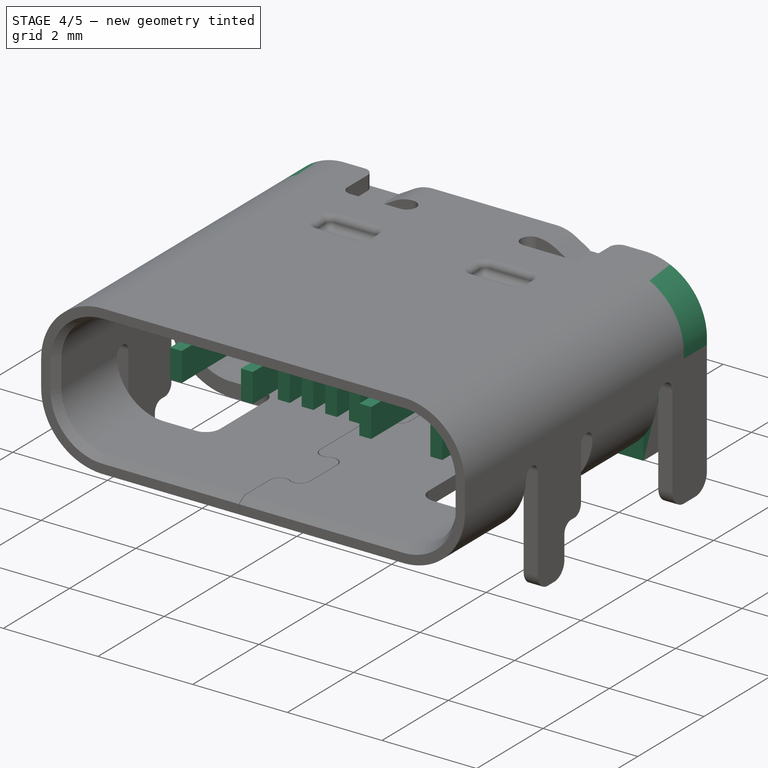
[diagram: stage 4 of 5 — iso view after this stage's code; geometry added in this stage tinted green]
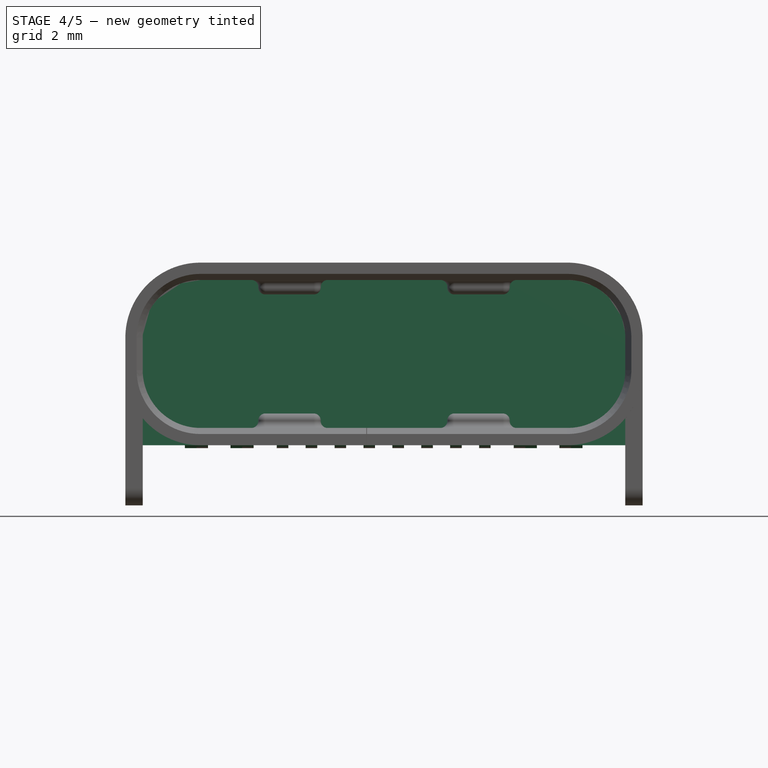
[diagram: stage 4 of 5 — front view after this stage's code; geometry added in this stage tinted green]
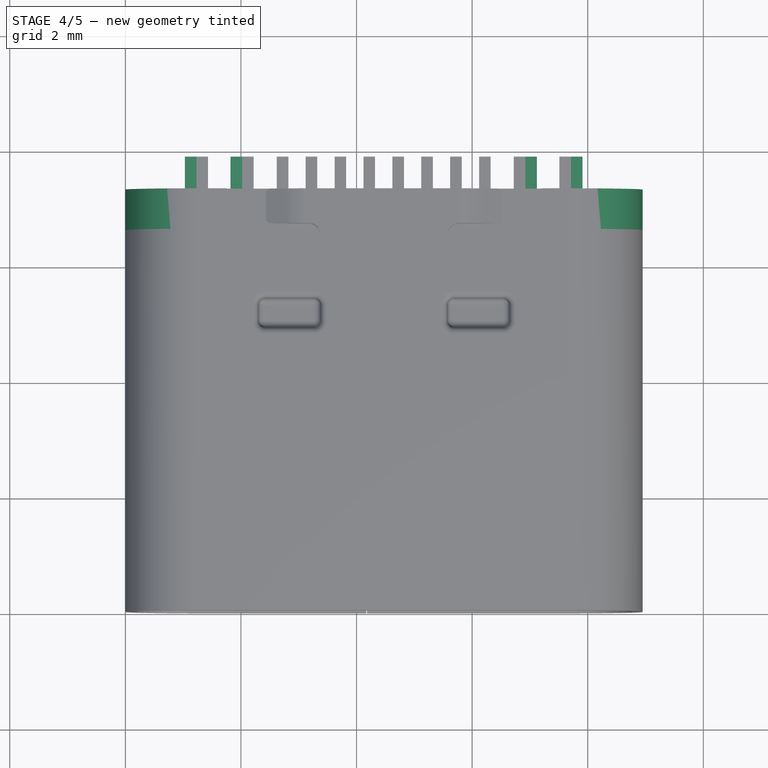
[diagram: stage 4 of 5 — top view after this stage's code; geometry added in this stage tinted green]
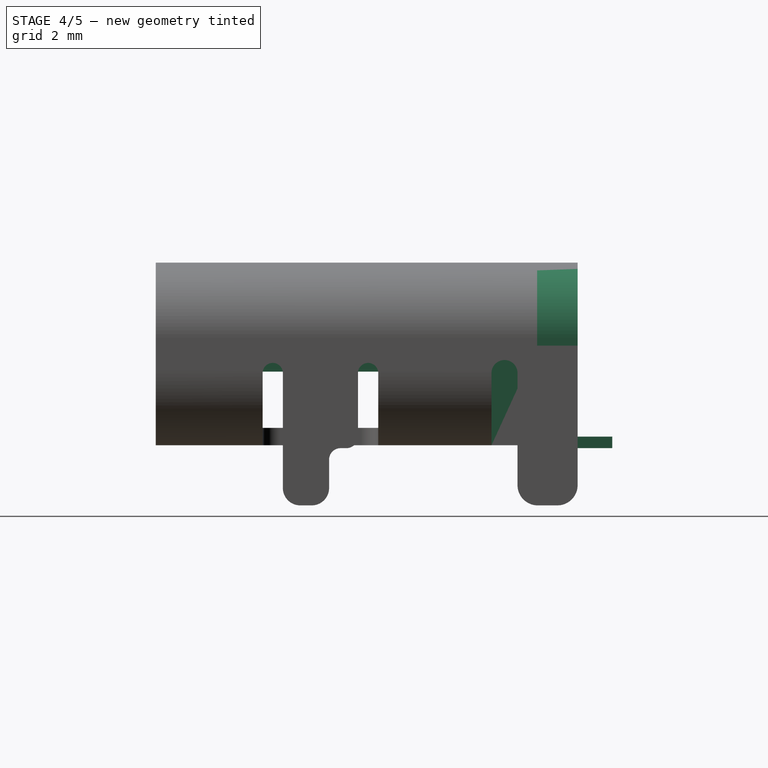
[diagram: stage 4 of 5 — right view after this stage's code; geometry added in this stage tinted green]
FEATURE [Sketcher::SketchObject] Sketch006
  AttachmentOffset = pos=(0,0,-7.3) rot=(0,0,1;0rad)
  MapMode = 5
  Placement = pos=(0,7.3,1.6e-15) rot=(1,0,0;1.5708rad)
  Support = -> [XZ_Plane001]
  sketch-geometry (6):
    g0: LineSegment StartX=0.3 StartY=0 StartZ=0 EndX=0.3 EndY=1.86 EndZ=0
    g1: LineSegment StartX=1.3 StartY=2.86 StartZ=0 EndX=7.65 EndY=2.86 EndZ=0
    g2: LineSegment StartX=8.65 StartY=1.86 StartZ=0 EndX=8.65 EndY=0 EndZ=0
    g3: LineSegment StartX=8.65 StartY=0 StartZ=0 EndX=0.3 EndY=0 EndZ=0
    g4: ArcOfCircle CenterX=1.3 CenterY=1.86 CenterZ=0 NormalX=0 NormalY=0 NormalZ=1 AngleXU=0 Radius=1 StartAngle=1.5708 EndAngle=3.14159
    g5: ArcOfCircle CenterX=7.65 CenterY=1.86 CenterZ=0 NormalX=0 NormalY=0 NormalZ=1 AngleXU=0 Radius=1 StartAngle=0 EndAngle=1.5708
  constraints (20):
    c: Coincident(g0,g3)
    c: Coincident(g0,g4)
    c: Coincident(g1,g4)
    c: Coincident(g1,g5)
    c: Coincident(g2,g5)
    c: Coincident(g2,g3)
    c: Horizontal(g0,g-1)
    c: Horizontal(g0,g4)
    c: Horizontal(g4,g5)
    c: Horizontal(g5,g2)
    c: Vertical(g1,g5)
    c: Vertical(g1,g4)
    c: Radius(g4) = 1
    c: Vertical(g0)
    c: DistanceX(g-1,g0) = 0.3
    c: Vertical(g2)
    c: Horizontal(g1)
    c: Equal(g0,g2)
    c: DistanceX(g3,g3) = 8.35
    c: DistanceY(g0,g0) = 1.86
FEATURE [PartDesign::Pad] Pad003
  Length = 1.49
  Length2 = 100
  Placement = pos=(0,0,0) rot=(1,0,0;1.5708rad)
  Profile = -> Sketch006
  Type = 0
FEATURE [Sketcher::SketchObject] Sketch008
  AttachmentOffset = pos=(0,0,-7.3) rot=(0,0,1;0rad)
  MapMode = 5
  Placement = pos=(0,7.3,1.6e-15) rot=(1,0,0;1.5708rad)
  Support = -> [XZ_Plane001]
  sketch-geometry (16):
    g0: GeomPoint X=0 Y=1.86 Z=0
    g1: ArcOfCircle [constr] CenterX=1.3 CenterY=1.86 CenterZ=0 NormalX=0 NormalY=0 NormalZ=1 AngleXU=0 Radius=1.3 StartAngle=1.5708 EndAngle=3.14159
    g2: ArcOfCircle [constr] CenterX=1.3 CenterY=1.86 CenterZ=0 NormalX=0 NormalY=0 NormalZ=1 AngleXU=0 Radius=1 StartAngle=1.5708 EndAngle=3.14159
    g3: LineSegment StartX=0.78 StartY=3.05147 StartZ=0 EndX=0.9 EndY=2.77652 EndZ=0
    g4: GeomPoint X=8.95 Y=1.86 Z=0
    g5: ArcOfCircle [constr] CenterX=7.65 CenterY=1.86 CenterZ=0 NormalX=0 NormalY=0 NormalZ=1 AngleXU=0 Radius=1.3 StartAngle=0 EndAngle=1.5708
    g6: ArcOfCircle [constr] CenterX=7.65 CenterY=1.86 CenterZ=0 NormalX=0 NormalY=0 NormalZ=1 AngleXU=0 Radius=1 StartAngle=0 EndAngle=1.5708
    g7: LineSegment StartX=8.05 StartY=2.77652 StartZ=0 EndX=8.17 EndY=3.05147 EndZ=0
    g8: ArcOfCircle CenterX=1.3 CenterY=1.86 CenterZ=0 NormalX=0 NormalY=0 NormalZ=1 AngleXU=0 Radius=1.3 StartAngle=1.98231 EndAngle=3.14159
    g9: ArcOfCircle CenterX=7.65 CenterY=1.86 CenterZ=0 NormalX=0 NormalY=0 NormalZ=1 AngleXU=0 Radius=1.3 StartAngle=1e-16 EndAngle=1.15928
    g10: LineSegment StartX=0.9 StartY=1.725 StartZ=0 EndX=0.9 EndY=2.77652 EndZ=0
    g11: LineSegment StartX=8.05 StartY=2.77652 StartZ=0 EndX=8.05 EndY=1.725 EndZ=0
    g12: LineSegment StartX=0.9 StartY=1.725 StartZ=0 EndX=0 EndY=1.725 EndZ=0
    g13: LineSegment StartX=0 StartY=1.725 StartZ=0 EndX=0 EndY=1.86 EndZ=0
    g14: LineSegment StartX=8.05 StartY=1.725 StartZ=0 EndX=8.95 EndY=1.725 EndZ=0
    g15: LineSegment StartX=8.95 StartY=1.725 StartZ=0 EndX=8.95 EndY=1.86 EndZ=0
  constraints (50):
    c: PointOnObject(g0,g-2)
    c: DistanceY(g-1,g0) = 1.86
    c: Horizontal(g1,g0)
    c: Coincident(g1,g2)
    c: Horizontal(g2,g1)
    c: Vertical(g2,g1)
    c: Vertical(g1,g1)
    c: Radius(g2) = 1
    c: DistanceY(g2,g1) = 0.3
    c: PointOnObject(g3,g2)
    c: PointOnObject(g3,g1)
    c: Perpendicular(g1,g3)
    c: Coincident(g1,g0)
    c: Horizontal(g4,g0)
    c: DistanceX(g-1,g4) = 8.95
    c: Coincident(g5,g4)
    c: Vertical(g6,g5)
    c: Horizontal(g5,g1)
    c: Horizontal(g6,g2)
    c: Horizontal(g5,g4)
    c: Horizontal(g6,g4)
    c: Equal(g6,g2)
    c: Equal(g5,g1)
    c: Horizontal(g6,g4)
    c: PointOnObject(g7,g6)
    c: Perpendicular(g7,g5) = 1.5708
    c: DistanceX(g0,g3) = 0.9
    c: Coincident(g8,g3)
    c: Coincident(g8,g0)
    c: DistanceX(g7,g4) = 0.9
    c: Coincident(g9,g4)
    c: Coincident(g9,g7)
    c: Coincident(g10,g3)
    c: Vertical(g10)
    c: Coincident(g7,g11)
    c: Vertical(g11)
    c: Horizontal(g8,g0)
    c: Horizontal(g9,g4)
    c: PointOnObject(g12,g-2)
    c: Horizontal(g12)
    c: Coincident(g12,g13)
    c: Coincident(g10,g12)
    c: Horizontal(g14)
    c: Coincident(g14,g15)
    c: Vertical(g15)
    c: Coincident(g4,g15)
    c: Coincident(g11,g14)
    c: DistanceY(g-1,g12) = 1.725
    c: Horizontal(g10,g11)
    c: Coincident(g0,g13)
FEATURE [PartDesign::Pad] Pad004
  BaseFeature = -> Pad003
  Length = 0.7
  Length2 = 100
  Placement = pos=(0,0,0) rot=(1,0,0;1.5708rad)
  Profile = -> Sketch008
  Type = 0
FEATURE [Sketcher::SketchObject] Sketch018
  AttachmentOffset = pos=(0,0,-0.05) rot=(0,0,1;0rad)
  MapMode = 5
  Placement = pos=(0,0,-0.05) rot=(0,0,1;0rad)
  Support = -> [XY_Plane002]
  sketch-geometry (40):
    g0: GeomPoint X=8.94 Y=0 Z=0
    g1: GeomPoint X=8.94 Y=7.3 Z=0
    g2: GeomPoint X=0 Y=7.3 Z=0
    g3: GeomPoint X=4.47 Y=7.3 Z=0
    g4: LineSegment StartX=1.03 StartY=7.9 StartZ=0 EndX=1.23 EndY=7.9 EndZ=0
    g5: LineSegment StartX=1.23 StartY=6.91 StartZ=0 EndX=1.03 EndY=6.91 EndZ=0
    g6: LineSegment StartX=1.03 StartY=6.91 StartZ=0 EndX=1.03 EndY=7.9 EndZ=0
    g7: LineSegment StartX=1.23 StartY=7.9 StartZ=0 EndX=1.23 EndY=6.91 EndZ=0
    g8: LineSegment StartX=1.82 StartY=6.91 StartZ=0 EndX=1.82 EndY=7.9 EndZ=0
    g9: LineSegment StartX=1.82 StartY=7.9 StartZ=0 EndX=2.02 EndY=7.9 EndZ=0
    g10: LineSegment StartX=2.02 StartY=7.9 StartZ=0 EndX=2.02 EndY=6.91 EndZ=0
    g11: LineSegment StartX=2.02 StartY=6.91 StartZ=0 EndX=1.82 EndY=6.91 EndZ=0
    g12: LineSegment [constr] StartX=2.62 StartY=7.9 StartZ=0 EndX=2.82 EndY=7.9 EndZ=0
    g13: LineSegment [constr] StartX=3.12 StartY=7.9 StartZ=0 EndX=3.32 EndY=7.9 EndZ=0
    g14: LineSegment [constr] StartX=3.62 StartY=7.9 StartZ=0 EndX=3.82 EndY=7.9 EndZ=0
    g15: LineSegment [constr] StartX=4.12 StartY=7.9 StartZ=0 EndX=4.32 EndY=7.9 EndZ=0
    g16: LineSegment [constr] StartX=4.62 StartY=7.9 StartZ=0 EndX=4.82 EndY=7.9 EndZ=0
    g17: LineSegment [constr] StartX=5.12 StartY=7.9 StartZ=0 EndX=5.32 EndY=7.9 EndZ=0
    g18: LineSegment [constr] StartX=5.62 StartY=7.9 StartZ=0 EndX=5.82 EndY=7.9 EndZ=0
    g19: LineSegment [constr] StartX=6.12 StartY=7.9 StartZ=0 EndX=6.32 EndY=7.9 EndZ=0
    g20: LineSegment StartX=6.92 StartY=7.9 StartZ=0 EndX=7.12 EndY=7.9 EndZ=0
    g21: LineSegment StartX=7.12 StartY=6.91 StartZ=0 EndX=6.92 EndY=6.91 EndZ=0
    g22: LineSegment StartX=6.92 StartY=6.91 StartZ=0 EndX=6.92 EndY=7.9 EndZ=0
    g23: LineSegment StartX=7.12 StartY=7.9 StartZ=0 EndX=7.12 EndY=6.91 EndZ=0
    g24: LineSegment StartX=7.71 StartY=6.91 StartZ=0 EndX=7.71 EndY=7.9 EndZ=0
    g25: LineSegment StartX=7.71 StartY=7.9 StartZ=0 EndX=7.91 EndY=7.9 EndZ=0
    g26: LineSegment StartX=7.91 StartY=7.9 StartZ=0 EndX=7.91 EndY=6.91 EndZ=0
    g27: LineSegment StartX=7.91 StartY=6.91 StartZ=0 EndX=7.71 EndY=6.91 EndZ=0
    g28: LineSegment [constr] StartX=1.23 StartY=7.9 StartZ=0 EndX=1.82 EndY=7.9 EndZ=0
    g29: LineSegment [constr] StartX=2.02 StartY=7.9 StartZ=0 EndX=2.62 EndY=7.9 EndZ=0
    g30: LineSegment [constr] StartX=2.82 StartY=7.9 StartZ=0 EndX=3.12 EndY=7.9 EndZ=0
    g31: LineSegment [constr] StartX=3.32 StartY=7.9 StartZ=0 EndX=3.62 EndY=7.9 EndZ=0
    g32: LineSegment [constr] StartX=3.82 StartY=7.9 StartZ=0 EndX=4.12 EndY=7.9 EndZ=0
    g33: LineSegment [constr] StartX=4.32 StartY=7.9 StartZ=0 EndX=4.62 EndY=7.9 EndZ=0
    g34: LineSegment [constr] StartX=4.82 StartY=7.9 StartZ=0 EndX=5.12 EndY=7.9 EndZ=0
    g35: LineSegment [constr] StartX=5.32 StartY=7.9 StartZ=0 EndX=5.62 EndY=7.9 EndZ=0
    g36: LineSegment [constr] StartX=5.82 StartY=7.9 StartZ=0 EndX=6.12 EndY=7.9 EndZ=0
    g37: LineSegment [constr] StartX=6.32 StartY=7.9 StartZ=0 EndX=6.92 EndY=7.9 EndZ=0
    g38: LineSegment [constr] StartX=7.12 StartY=7.9 StartZ=0 EndX=7.71 EndY=7.9 EndZ=0
    g39: GeomPoint X=4.47 Y=7.9 Z=0
  constraints (110):
    c: DistanceX(g-1,g0) = 8.94
    c: DistanceY(g0,g1) = 7.3
    c: PointOnObject(g2,g-2)
    c: Horizontal(g2,g1)
    c: Vertical(g1,g0)
    c: PointOnObject(g0,g-1)
    c: DistanceY(g6,g6) = 0.99
    c: DistanceY(g2,g4) = 0.6
    c: Coincident(g4,g6)
    c: Coincident(g5,g6)
    c: Coincident(g9,g10)
    c: Coincident(g9,g29)
    c: Coincident(g10,g11)
    c: Coincident(g12,g29)
    c: Coincident(g12,g30)
    c: Coincident(g21,g22)
    c: Coincident(g26,g27)
    c: Coincident(g13,g30)
    c: Coincident(g13,g31)
    c: Coincident(g14,g31)
    c: Coincident(g14,g32)
    c: Coincident(g15,g32)
    c: Coincident(g15,g33)
    c: Coincident(g16,g33)
    c: Coincident(g16,g34)
    c: Coincident(g17,g34)
    c: Coincident(g17,g35)
    c: Coincident(g18,g35)
    c: Coincident(g18,g36)
    c: Coincident(g19,g36)
    c: Coincident(g19,g37)
    c: Coincident(g20,g22)
    c: Coincident(g20,g37)
    c: Coincident(g23,g38)
    c: Coincident(g24,g38)
    c: Coincident(g25,g26)
    c: Symmetric(g2,g1,g3)
    c: Symmetric(g15,g16,g39)
    c: Vertical(g39,g3)
    c: Equal(g30,g31)
    c: Equal(g32,g33)
    c: Equal(g33,g34)
    c: Equal(g34,g35)
    c: Equal(g35,g36)
    c: Horizontal(g28)
    c: Horizontal(g9)
    c: Horizontal(g4)
    c: Horizontal(g29)
    c: Horizontal(g12)
    c: Horizontal(g30)
    c: Horizontal(g13)
    c: Horizontal(g31)
    c: Horizontal(g14)
    c: Horizontal(g32)
    c: Horizontal(g15)
    c: Horizontal(g33)
    c: Horizontal(g16)
    c: Horizontal(g34)
    c: Horizontal(g17)
    c: Horizontal(g35)
    c: Horizontal(g18)
    c: Horizontal(g36)
    c: Horizontal(g25)
    c: Horizontal(g38)
    c: Horizontal(g20)
    c: Horizontal(g37)
    c: Horizontal(g19)
    c: Horizontal(g27)
    c: Horizontal(g21)
    c: Horizontal(g11)
    c: Horizontal(g5)
    c: Vertical(g6)
    c: Vertical(g7)
    c: Vertical(g8)
    c: Vertical(g10)
    c: Vertical(g22)
    c: Vertical(g23)
    c: Vertical(g24)
    c: Vertical(g26)
    c: DistanceX(g33,g33) = 0.3
    c: Equal(g4,g9)
    c: Equal(g9,g12)
    c: Equal(g12,g13)
    c: Equal(g13,g14)
    c: Equal(g14,g15)
    c: Equal(g15,g16)
    c: Equal(g17,g16)
    c: Equal(g17,g18)
    c: Equal(g18,g19)
    c: Equal(g19,g20)
    c: Equal(g20,g25)
    c: Coincident(g4,g7)
    c: Coincident(g7,g5)
    c: Coincident(g4,g28)
    c: Coincident(g8,g9)
    c: Coincident(g8,g28)
    c: Coincident(g8,g11)
    c: Coincident(g20,g23)
    c: Coincident(g21,g23)
    c: Coincident(g24,g25)
    c: Coincident(g24,g27)
    c: Equal(g31,g32)
    c: Horizontal(g5,g8)
    c: Horizontal(g21,g24)
    c: DistanceX(g16,g16) = 0.2
    c: DistanceX(g38,g38) = 0.59
    c: Equal(g38,g28)
    c: Horizontal(g21,g10)
    c: Equal(g29,g37)
    c: DistanceX(g37,g37) = 0.6
FEATURE [PartDesign::Pad] Pad010
  BaseFeature = -> Pad009
  Length = 0.2
  Length2 = 100
  Profile = -> Sketch018
  Type = 0
FEATURE [Sketcher::SketchObject] Sketch019
  AttachmentOffset = pos=(0,0,1.3) rot=(0,0,1;0rad)
  MapMode = 5
  Placement = pos=(0,0,1.3) rot=(0,0,1;0rad)
  Support = -> [XY_Plane003]
  sketch-geometry (7):
    g0: LineSegment StartX=1.475 StartY=5.92 StartZ=0 EndX=7.475 EndY=5.92 EndZ=0
    g1: LineSegment StartX=7.475 StartY=5.92 StartZ=0 EndX=7.475 EndY=5.82 EndZ=0
    g2: LineSegment StartX=7.475 StartY=5.82 StartZ=0 EndX=1.475 EndY=5.82 EndZ=0
    g3: LineSegment StartX=1.475 StartY=5.82 StartZ=0 EndX=1.475 EndY=5.92 EndZ=0
    g4: GeomPoint X=4.475 Y=5.82 Z=0
    g5: GeomPoint X=8.95 Y=0 Z=0
    g6: GeomPoint X=4.475 Y=0 Z=0
  constraints (16):
    c: Coincident(g0,g1)
    c: Coincident(g1,g2)
    c: Coincident(g2,g3)
    c: Coincident(g3,g0)
    c: Horizontal(g0)
    c: Horizontal(g2)
    c: Vertical(g1)
    c: Vertical(g3)
    c: DistanceX(g2,g2) = 6
    c: Symmetric(g2,g1,g4)
    c: PointOnObject(g5,g-1)
    c: DistanceX(g-1,g5) = 8.95
    c: Symmetric(g-1,g5,g6)
    c: DistanceY(g-1,g2) = 5.82
    c: DistanceY(g3,g3) = 0.1
    c: Vertical(g4,g6)
FEATURE [PartDesign::Pad] Pad011
  Length = 0.56
  Length2 = 100
  Profile = -> Sketch019
  Type = 0
FEATURE [Sketcher::SketchObject] Sketch020
  AttachmentOffset = pos=(0,0,1.275) rot=(0,0,1;0rad)
  MapMode = 5
  Placement = pos=(0,0,1.275) rot=(0,0,1;0rad)
  Support = -> [XY_Plane003]
  sketch-geometry (42):
    g0: GeomPoint X=4.475 Y=5.82 Z=0
    g1: GeomPoint X=8.95 Y=0 Z=0
    g2: GeomPoint X=4.475 Y=0 Z=0
    g3: LineSegment StartX=1.6 StartY=5.82 StartZ=0 EndX=1.85 EndY=5.82 EndZ=0
    g4: LineSegment StartX=1.85 StartY=5.82 StartZ=0 EndX=1.85 EndY=1.6 EndZ=0
    g5: LineSegment StartX=1.85 StartY=1.6 StartZ=0 EndX=1.6 EndY=1.6 EndZ=0
    g6: LineSegment StartX=1.6 StartY=1.6 StartZ=0 EndX=1.6 EndY=5.82 EndZ=0
    g7: LineSegment StartX=3.1 StartY=5.82 StartZ=0 EndX=3.35 EndY=5.82 EndZ=0
    g8: LineSegment StartX=3.35 StartY=5.82 StartZ=0 EndX=3.35 EndY=1.6 EndZ=0
    g9: LineSegment StartX=3.35 StartY=1.6 StartZ=0 EndX=3.1 EndY=1.6 EndZ=0
    g10: LineSegment StartX=3.1 StartY=1.6 StartZ=0 EndX=3.1 EndY=5.82 EndZ=0
    g11: LineSegment StartX=3.6 StartY=5.82 StartZ=0 EndX=3.85 EndY=5.82 EndZ=0
    g12: LineSegment StartX=3.85 StartY=5.82 StartZ=0 EndX=3.85 EndY=2 EndZ=0
    g13: LineSegment StartX=3.85 StartY=2 StartZ=0 EndX=3.6 EndY=2 EndZ=0
    g14: LineSegment StartX=3.6 StartY=2 StartZ=0 EndX=3.6 EndY=5.82 EndZ=0
    g15: LineSegment StartX=4.1 StartY=5.82 StartZ=0 EndX=4.35 EndY=5.82 EndZ=0
    g16: LineSegment StartX=4.35 StartY=5.82 StartZ=0 EndX=4.35 EndY=2 EndZ=0
    g17: LineSegment StartX=4.35 StartY=2 StartZ=0 EndX=4.1 EndY=2 EndZ=0
    g18: LineSegment StartX=4.1 StartY=2 StartZ=0 EndX=4.1 EndY=5.82 EndZ=0
    g19: LineSegment StartX=4.6 StartY=5.82 StartZ=0 EndX=4.85 EndY=5.82 EndZ=0
    g20: LineSegment StartX=4.85 StartY=5.82 StartZ=0 EndX=4.85 EndY=2 EndZ=0
    g21: LineSegment StartX=4.85 StartY=2 StartZ=0 EndX=4.6 EndY=2 EndZ=0
    g22: LineSegment StartX=4.6 StartY=2 StartZ=0 EndX=4.6 EndY=5.82 EndZ=0
    g23: LineSegment StartX=5.1 StartY=5.82 StartZ=0 EndX=5.35 EndY=5.82 EndZ=0
    g24: LineSegment StartX=5.35 StartY=5.82 StartZ=0 EndX=5.35 EndY=2 EndZ=0
    g25: LineSegment StartX=5.35 StartY=2 StartZ=0 EndX=5.1 EndY=2 EndZ=0
    g26: LineSegment StartX=5.1 StartY=2 StartZ=0 EndX=5.1 EndY=5.82 EndZ=0
    g27: LineSegment StartX=5.6 StartY=5.82 StartZ=0 EndX=5.85 EndY=5.82 EndZ=0
    g28: LineSegment StartX=5.85 StartY=5.82 StartZ=0 EndX=5.85 EndY=1.6 EndZ=0
    g29: LineSegment StartX=5.85 StartY=1.6 StartZ=0 EndX=5.6 EndY=1.6 EndZ=0
    g30: LineSegment StartX=5.6 StartY=1.6 StartZ=0 EndX=5.6 EndY=5.82 EndZ=0
    g31: LineSegment StartX=7.1 StartY=5.82 StartZ=0 EndX=7.35 EndY=5.82 EndZ=0
    g32: LineSegment StartX=7.35 StartY=5.82 StartZ=0 EndX=7.35 EndY=1.6 EndZ=0
    g33: LineSegment StartX=7.35 StartY=1.6 StartZ=0 EndX=7.1 EndY=1.6 EndZ=0
    g34: LineSegment StartX=7.1 StartY=1.6 StartZ=0 EndX=7.1 EndY=5.82 EndZ=0
    g35: LineSegment [constr] StartX=1.85 StartY=5.82 StartZ=0 EndX=3.1 EndY=5.82 EndZ=0
    g36: LineSegment [constr] StartX=3.35 StartY=5.82 StartZ=0 EndX=3.6 EndY=5.82 EndZ=0
    g37: LineSegment [constr] StartX=3.85 StartY=5.82 StartZ=0 EndX=4.1 EndY=5.82 EndZ=0
    g38: LineSegment [constr] StartX=4.35 StartY=5.82 StartZ=0 EndX=4.6 EndY=5.82 EndZ=0
    g39: LineSegment [constr] StartX=4.85 StartY=5.82 StartZ=0 EndX=5.1 EndY=5.82 EndZ=0
    g40: LineSegment [constr] StartX=5.35 StartY=5.82 StartZ=0 EndX=5.6 EndY=5.82 EndZ=0
    g41: LineSegment [constr] StartX=5.85 StartY=5.82 StartZ=0 EndX=7.1 EndY=5.82 EndZ=0
  constraints (114):
    c: PointOnObject(g1,g-1)
    c: DistanceX(g-1,g1) = 8.95
    c: Symmetric(g-1,g1,g2)
    c: Vertical(g0,g2)
    c: DistanceY(g-1,g0) = 5.82
    c: Coincident(g3,g4)
    c: Coincident(g4,g5)
    c: Coincident(g5,g6)
    c: Coincident(g6,g3)
    c: Horizontal(g3)
    c: Horizontal(g5)
    c: Vertical(g4)
    c: Vertical(g6)
    c: Coincident(g7,g8)
    c: Coincident(g8,g9)
    c: Coincident(g9,g10)
    c: Coincident(g10,g7)
    c: Horizontal(g7)
    c: Horizontal(g9)
    c: Vertical(g8)
    c: Vertical(g10)
    c: Coincident(g11,g12)
    c: Coincident(g12,g13)
    c: Coincident(g13,g14)
    c: Coincident(g14,g11)
    c: Horizontal(g11)
    c: Horizontal(g13)
    c: Vertical(g12)
    c: Vertical(g14)
    c: Coincident(g15,g16)
    c: Coincident(g16,g17)
    c: Coincident(g17,g18)
    c: Coincident(g18,g15)
    c: Horizontal(g15)
    c: Horizontal(g17)
    c: Vertical(g16)
    c: Vertical(g18)
    c: Coincident(g19,g20)
    c: Coincident(g20,g21)
    c: Coincident(g21,g22)
    c: Coincident(g22,g19)
    c: Horizontal(g19)
    c: Horizontal(g21)
    c: Vertical(g20)
    c: Vertical(g22)
    c: Coincident(g23,g24)
    c: Coincident(g24,g25)
    c: Coincident(g25,g26)
    c: Coincident(g26,g23)
    c: Horizontal(g23)
    c: Horizontal(g25)
    c: Vertical(g24)
    c: Vertical(g26)
    c: Coincident(g27,g28)
    c: Coincident(g28,g29)
    c: Coincident(g29,g30)
    c: Coincident(g30,g27)
    c: Horizontal(g27)
    c: Horizontal(g29)
    c: Vertical(g28)
    c: Vertical(g30)
    c: Coincident(g31,g32)
    c: Coincident(g32,g33)
    c: Coincident(g33,g34)
    c: Coincident(g34,g31)
    c: Horizontal(g31)
    c: Horizontal(g33)
    c: Vertical(g32)
    c: Vertical(g34)
    c: Coincident(g35,g3)
    c: Coincident(g35,g7)
    c: Coincident(g36,g11)
    c: Horizontal(g36)
    c: Coincident(g37,g11)
    c: Coincident(g37,g15)
    c: Coincident(g38,g15)
    c: Coincident(g39,g19)
    c: Coincident(g39,g23)
    c: Horizontal(g39)
    c: Coincident(g40,g23)
    c: Coincident(g40,g27)
    c: Coincident(g41,g27)
    c: Coincident(g41,g31)
    c: Horizontal(g41)
    c: Horizontal(g40)
    c: Horizontal(g38)
    c: Horizontal(g37)
    c: Horizontal(g35)
    c: Coincident(g7,g36)
    c: Coincident(g19,g38)
    c: DistanceX(g3,g3) = 0.25
    c: Equal(g7,g36)
    c: Equal(g36,g11)
    c: Equal(g11,g37)
    c: Equal(g37,g15)
    c: Equal(g15,g38)
    c: Equal(g38,g19)
    c: Equal(g19,g39)
    c: Equal(g39,g23)
    c: Equal(g23,g40)
    c: Equal(g40,g27)
    c: Horizontal(g12,g17)
    c: Horizontal(g16,g21)
    c: Horizontal(g20,g25)
    c: Symmetric(g15,g19,g0)
    c: Horizontal(g33,g4)
    c: DistanceY(g-1,g5) = 1.6
    c: Equal(g3,g7)
    c: Equal(g27,g31)
    c: Equal(g35,g41)
    c: DistanceX(g41,g41) = 1.25
    c: Horizontal(g9,g4)
    c: Horizontal(g28,g33)
    c: DistanceY(g8,g13) = 0.4
FEATURE [PartDesign::Pad] Pad012
  BaseFeature = -> Pad011
  Length = 0.61
  Length2 = 100
  Profile = -> Sketch020
  Type = 0
FEATURE [PartDesign::Body] Body003  label="ConPins"
  Group = -> [Sketch019,Pad011,Sketch020,Pad012]
  Origin = -> Origin003
  Tip = -> Pad012
FEATURE [PartDesign::Fillet] Fillet003
  Base = -> Pad010 [Edge230,Edge231,Edge233,Edge234,Edge235,Edge236,Edge237,Edge238,Edge239,Edge240,Edge241,Edge242,Edge244,Edge245,Edge247,Edge248]
  BaseFeature = -> Pad010
  Radius = 0.19
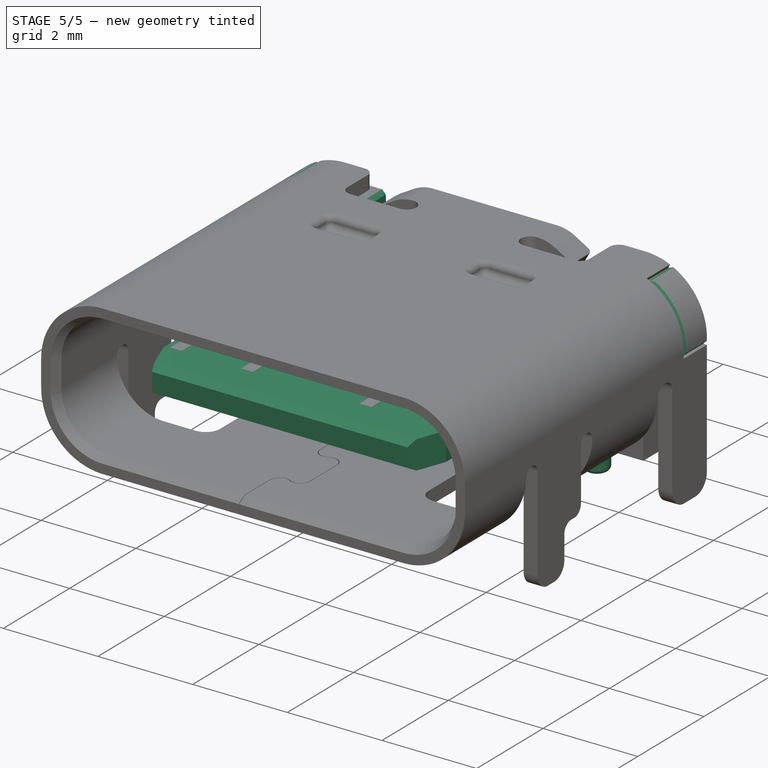
[diagram: stage 5 of 5 — iso view after this stage's code; geometry added in this stage tinted green]
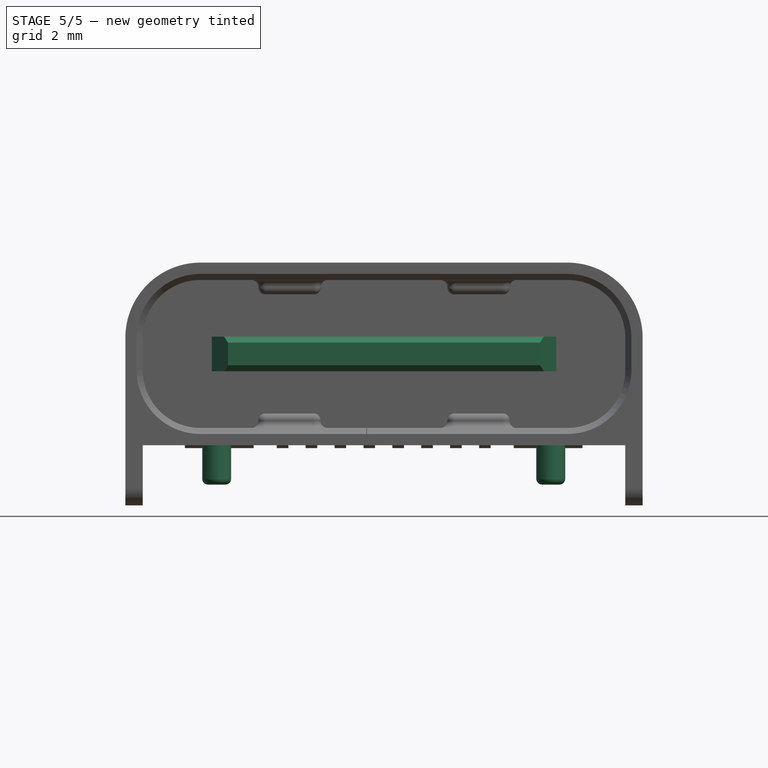
[diagram: stage 5 of 5 — front view after this stage's code; geometry added in this stage tinted green]
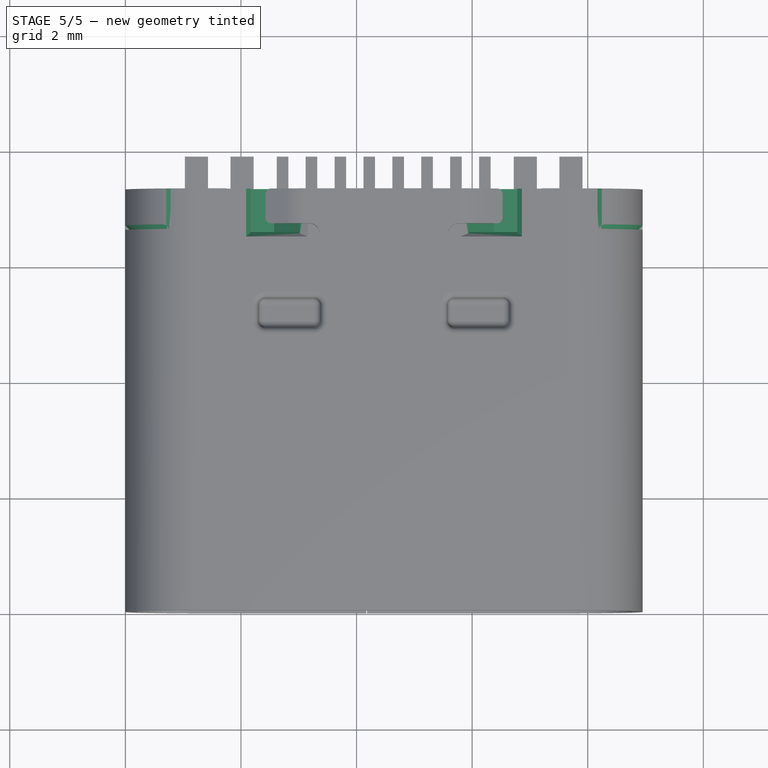
[diagram: stage 5 of 5 — top view after this stage's code; geometry added in this stage tinted green]
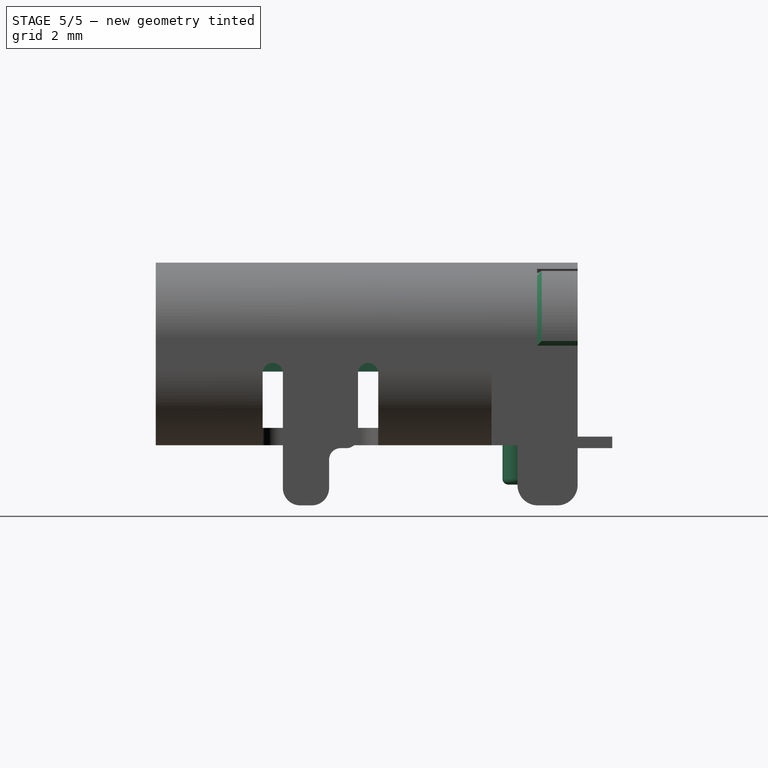
[diagram: stage 5 of 5 — right view after this stage's code; geometry added in this stage tinted green]
FEATURE [Sketcher::SketchObject] Sketch009
  AttachmentOffset = pos=(0,0,-7.3) rot=(0,0,1;0rad)
  MapMode = 5
  Placement = pos=(0,7.3,1.6e-15) rot=(1,0,0;1.5708rad)
  Support = -> [XZ_Plane001]
  sketch-geometry (14):
    g0: GeomPoint X=8.95 Y=0 Z=0
    g1: GeomPoint X=0 Y=2.86 Z=0
    g2: GeomPoint X=8.95 Y=2.86 Z=0
    g3: GeomPoint X=4.475 Y=2.86 Z=0
    g4: LineSegment StartX=2.17 StartY=2.86 StartZ=0 EndX=2.17 EndY=2.36 EndZ=0
    g5: LineSegment StartX=2.17 StartY=2.36 StartZ=0 EndX=2.575 EndY=2.36 EndZ=0
    g6: LineSegment StartX=2.575 StartY=2.36 StartZ=0 EndX=3.075 EndY=2.86 EndZ=0
    g7: LineSegment StartX=3.075 StartY=2.86 StartZ=0 EndX=2.17 EndY=2.86 EndZ=0
    g8: LineSegment StartX=5.875 StartY=2.86 StartZ=0 EndX=6.375 EndY=2.36 EndZ=0
    g9: LineSegment StartX=6.375 StartY=2.36 StartZ=0 EndX=6.78 EndY=2.36 EndZ=0
    g10: LineSegment StartX=6.78 StartY=2.36 StartZ=0 EndX=6.78 EndY=2.86 EndZ=0
    g11: LineSegment StartX=6.78 StartY=2.86 StartZ=0 EndX=5.875 EndY=2.86 EndZ=0
    g12: LineSegment [constr] StartX=3.075 StartY=2.86 StartZ=0 EndX=4.475 EndY=2.86 EndZ=0
    g13: LineSegment [constr] StartX=4.475 StartY=2.86 StartZ=0 EndX=5.875 EndY=2.86 EndZ=0
  constraints (35):
    c: PointOnObject(g0,g-1)
    c: DistanceX(g-1,g0) = 8.95
    c: PointOnObject(g1,g-2)
    c: Horizontal(g2,g1)
    c: Vertical(g2,g0)
    c: DistanceY(g-1,g1) = 2.86
    c: Symmetric(g1,g2,g3)
    c: Vertical(g4)
    c: Coincident(g4,g5)
    c: Horizontal(g5)
    c: Coincident(g5,g6)
    c: Coincident(g6,g7)
    c: Coincident(g7,g4)
    c: Horizontal(g7)
    c: Coincident(g8,g9)
    c: Horizontal(g9)
    c: Coincident(g9,g10)
    c: Vertical(g10)
    c: Coincident(g10,g11)
    c: Coincident(g11,g8)
    c: Horizontal(g11)
    c: Equal(g11,g7)
    c: Equal(g10,g4)
    c: Equal(g9,g5)
    c: Angle(g6) = 0.785398
    c: Coincident(g12,g6)
    c: Coincident(g12,g3)
    c: Horizontal(g12)
    c: Coincident(g13,g3)
    c: Coincident(g13,g8)
    c: Horizontal(g13)
    c: Equal(g13,g12)
    c: DistanceY(g10,g10) = 0.5
    c: DistanceX(g-1,g4) = 2.17
    c: DistanceX(g6,g8) = 2.8
FEATURE [PartDesign::Pocket] Pocket003
  BaseFeature = -> Pad004
  Length = 0.75
  Length2 = 100
  Placement = pos=(0,0,0) rot=(1,0,0;1.5708rad)
  Profile = -> Sketch009
  Reversed = true
  Type = 0
FEATURE [PartDesign::Chamfer] Chamfer
  Base = -> Pocket003 [Edge29,Edge31,Edge30,Edge43,Edge42,Edge41,Edge40,Edge39,Edge38,Edge70,Edge73,Edge74,Edge25,Edge79]
  BaseFeature = -> Pocket003
  Placement = pos=(0,0,0) rot=(1,0,0;1.5708rad)
  Size = 0.08
FEATURE [Sketcher::SketchObject] Sketch012
  AttachmentOffset = pos=(0,0,1.28) rot=(0,0,1;0rad)
  MapMode = 5
  Placement = pos=(0,0,1.28) rot=(0,0,1;0rad)
  Support = -> [XY_Plane001]
  sketch-geometry (10):
    g0: LineSegment StartX=1.495 StartY=5.81 StartZ=0 EndX=1.495 EndY=1.56929 EndZ=0
    g1: LineSegment StartX=1.495 StartY=1.56929 StartZ=0 EndX=1.775 EndY=0.8 EndZ=0
    g2: LineSegment StartX=1.775 StartY=0.8 StartZ=0 EndX=7.175 EndY=0.8 EndZ=0
    g3: LineSegment StartX=7.175 StartY=0.8 StartZ=0 EndX=7.455 EndY=1.56929 EndZ=0
    g4: LineSegment StartX=7.455 StartY=1.56929 StartZ=0 EndX=7.455 EndY=5.81 EndZ=0
    g5: LineSegment StartX=7.455 StartY=5.81 StartZ=0 EndX=1.495 EndY=5.81 EndZ=0
    g6: GeomPoint X=4.475 Y=5.81 Z=0
    g7: GeomPoint X=4.475 Y=0.8 Z=0
    g8: GeomPoint X=8.95 Y=0 Z=0
    g9: GeomPoint X=4.475 Y=0 Z=0
  constraints (23):
    c: Vertical(g0)
    c: Coincident(g0,g1)
    c: Coincident(g1,g2)
    c: Horizontal(g2)
    c: Coincident(g2,g3)
    c: Coincident(g3,g4)
    c: Vertical(g4)
    c: Coincident(g4,g5)
    c: Coincident(g5,g0)
    c: Horizontal(g5)
    c: Symmetric(g0,g4,g6)
    c: Symmetric(g1,g2,g7)
    c: Vertical(g7,g6)
    c: DistanceX(g1,g7) = 2.7
    c: DistanceX(g0,g1) = 0.28
    c: Angle(g2,g1) = 1.91986
    c: DistanceY(g-1,g0) = 5.81
    c: PointOnObject(g8,g-1)
    c: DistanceX(g-1,g8) = 8.95
    c: Symmetric(g8,g-1,g9)
    c: Vertical(g7,g9)
    c: DistanceY(g8,g2) = 0.8
    c: Equal(g1,g3)
FEATURE [PartDesign::Pad] Pad006
  BaseFeature = -> Chamfer
  Length = 0.6
  Length2 = 100
  Placement = pos=(0,0,0) rot=(1,0,0;1.5708rad)
  Profile = -> Sketch012
  Type = 0
FEATURE [Sketcher::SketchObject] Sketch013
  AttachmentOffset = pos=(0.8,1.88,1.495) rot=(0,0,1;0rad)
  MapMode = 2
  Placement = pos=(1.495,0.8,1.88) rot=(0.57735,0.57735,0.57735;2.0944rad)
  Support = -> [YZ_Plane001]
  sketch-geometry (6):
    g0: LineSegment StartX=0 StartY=-0.105 StartZ=0 EndX=0.181865 EndY=0 EndZ=0
    g1: LineSegment StartX=0.181865 StartY=0 StartZ=0 EndX=0 EndY=0 EndZ=0
    g2: LineSegment StartX=0 StartY=0 StartZ=0 EndX=0 EndY=-0.105 EndZ=0
    g3: LineSegment StartX=0 StartY=-0.6 StartZ=0 EndX=0.181865 EndY=-0.6 EndZ=0
    g4: LineSegment StartX=0.181865 StartY=-0.6 StartZ=0 EndX=0 EndY=-0.495 EndZ=0
    g5: LineSegment StartX=0 StartY=-0.495 StartZ=0 EndX=0 EndY=-0.6 EndZ=0
  constraints (17):
    c: PointOnObject(g0,g-2)
    c: Coincident(g0,g1)
    c: Horizontal(g1)
    c: Coincident(g1,g2)
    c: DistanceY(g2,g2) = 0.105
    c: Coincident(g0,g2)
    c: Angle(g0) = 0.523599
    c: Coincident(g1,g-1)
    c: PointOnObject(g3,g-2)
    c: Horizontal(g3)
    c: Coincident(g3,g4)
    c: PointOnObject(g4,g-2)
    c: Coincident(g4,g5)
    c: Coincident(g5,g3)
    c: DistanceY(g3,g1) = 0.6
    c: Equal(g5,g2)
    c: Equal(g3,g1)
FEATURE [PartDesign::Pocket] Pocket004
  BaseFeature = -> Pad006
  Length = 5
  Length2 = 100
  Placement = pos=(0,0,0) rot=(1,0,0;1.5708rad)
  Profile = -> Sketch013
  Reversed = true
  Type = 1
FEATURE [Sketcher::SketchObject] Sketch014
  MapMode = 5
  Support = -> [XY_Plane001]
  sketch-geometry (6):
    g0: Circle CenterX=1.58 CenterY=6.25 CenterZ=0 NormalX=0 NormalY=0 NormalZ=1 AngleXU=0 Radius=0.25
    g1: Circle CenterX=7.36 CenterY=6.25 CenterZ=0 NormalX=0 NormalY=0 NormalZ=1 AngleXU=0 Radius=0.25
    g2: GeomPoint X=8.94 Y=0 Z=0
    g3: GeomPoint X=4.47 Y=0 Z=0
    g4: LineSegment [constr] StartX=1.58 StartY=6.25 StartZ=0 EndX=4.47 EndY=6.25 EndZ=0
    g5: LineSegment [constr] StartX=4.47 StartY=6.25 StartZ=0 EndX=7.36 EndY=6.25 EndZ=0
  constraints (14):
    c: Equal(g0,g1)
    c: Diameter(g0) = 0.5
    c: Horizontal(g0,g1)
    c: PointOnObject(g2,g-1)
    c: DistanceX(g-1,g2) = 8.94
    c: Symmetric(g2,g-1,g3)
    c: Coincident(g4,g0)
    c: Horizontal(g4)
    c: Coincident(g5,g4)
    c: Coincident(g5,g1)
    c: Vertical(g4,g3)
    c: Equal(g5,g4)
    c: DistanceX(g0,g1) = 5.78
    c: DistanceY(g-1,g0) = 6.25
FEATURE [PartDesign::Pad] Pad007
  BaseFeature = -> Pocket004
  Length = 0.68
  Length2 = 100
  Placement = pos=(0,0,0) rot=(1,0,0;1.5708rad)
  Profile = -> Sketch014
  Refine = true
  Reversed = true
  Type = 0
FEATURE [PartDesign::Fillet] Fillet002
  Base = -> Pad007 [Edge92,Edge94]
  BaseFeature = -> Pad007
  Placement = pos=(0,0,0) rot=(1,0,0;1.5708rad)
  Radius = 0.1
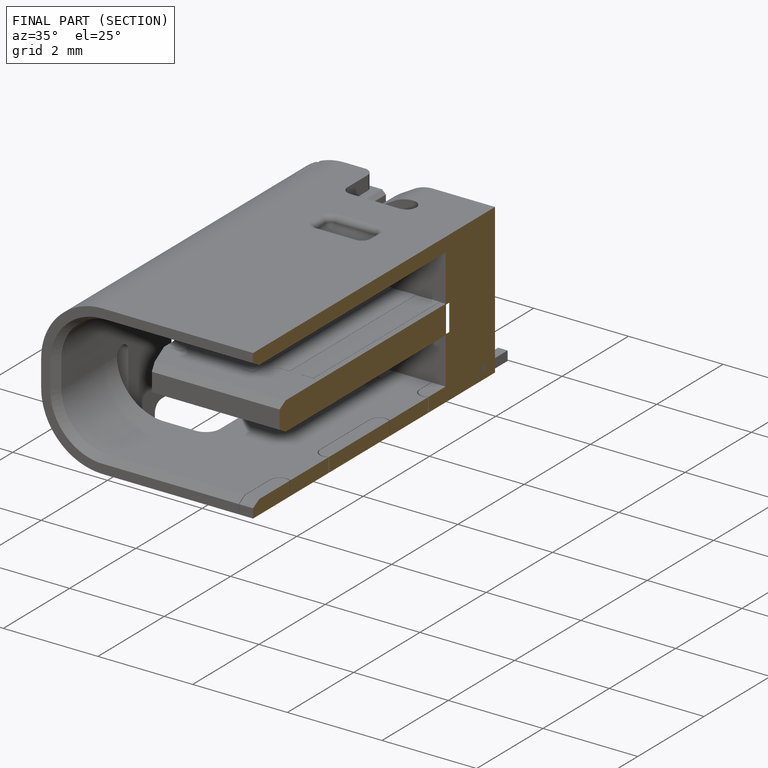
[diagram: finished part — half-section view (interior)]
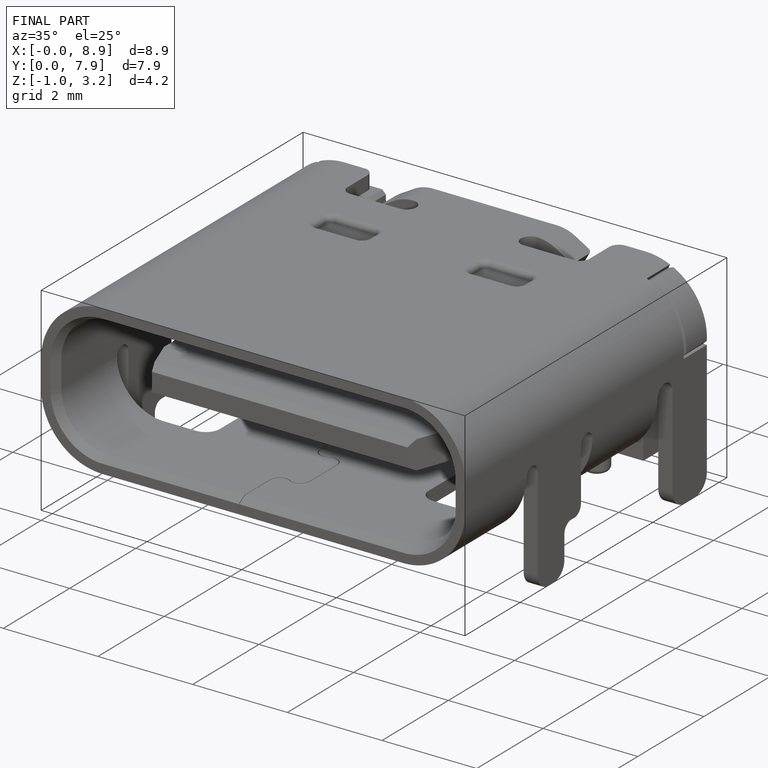
[diagram: finished part — iso view with bounding-box wireframe]
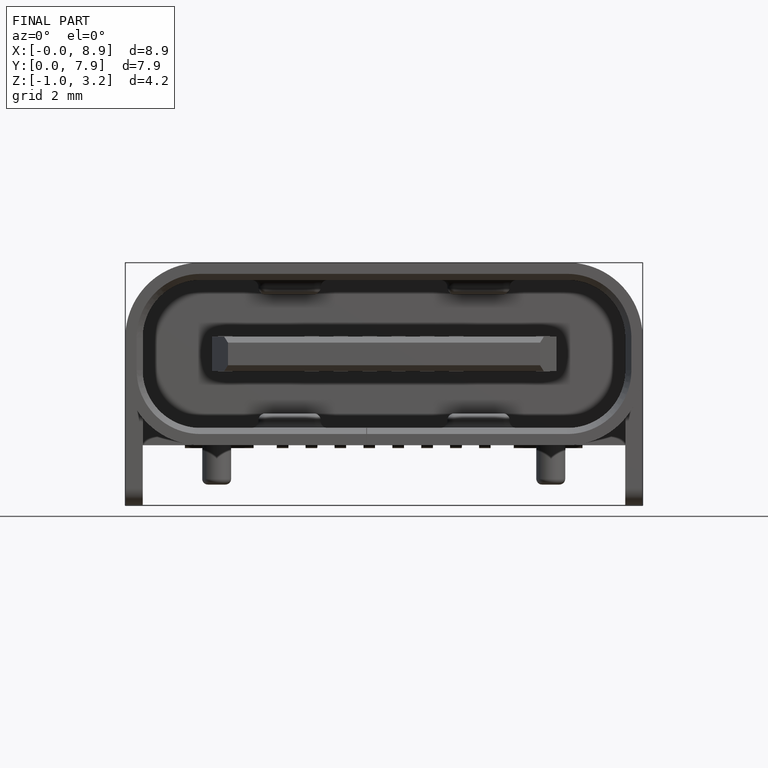
[diagram: finished part — front view with bounding-box wireframe]
